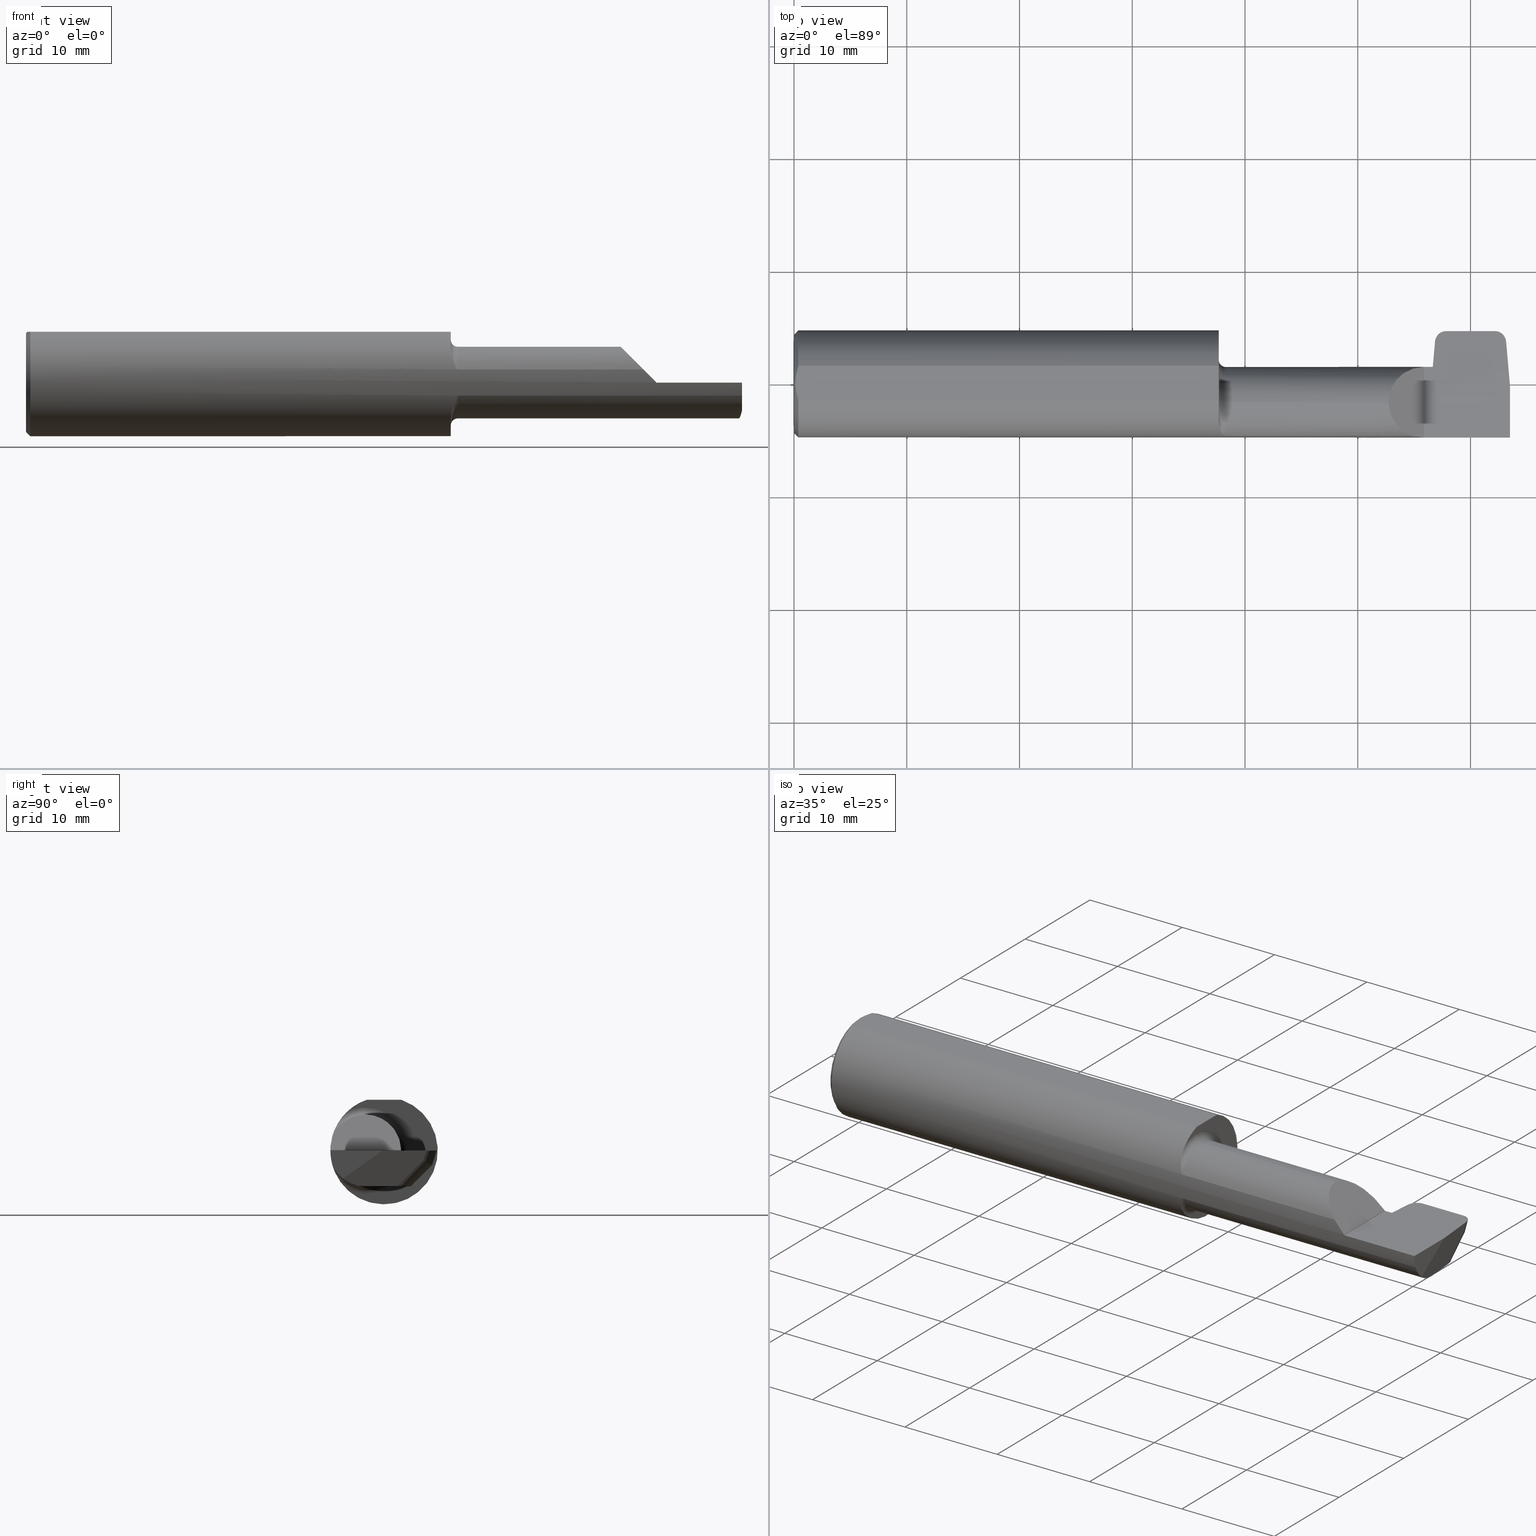
[diagram: canonical four-view strip — front | top / right | iso, engineering-drawing reading convention]
A machine part, canonical four-view strip (front | top / right | iso — engineering-drawing reading convention). The complete STEP part file that produces these views, byte-faithful:
ISO-10303-21;
HEADER;
FILE_DESCRIPTION (( 'STEP AP203' ),
    '1' );
FILE_NAME ('224834-GOR241-15.STEP',
    '2024-07-08T17:51:14',
    ( '' ),
    ( '' ),
    'SwSTEP 2.0',
    'SolidWorks 2024',
    '' );
FILE_SCHEMA (( 'CONFIG_CONTROL_DESIGN' ));
ENDSEC;

DATA;
#1 = AXIS2_PLACEMENT_3D ( 'NONE', #264, #650, #889 ) ;
#2 = VECTOR ( 'NONE', #383, 39.37007874015748854 ) ;
#3 = DIRECTION ( 'NONE',  ( 0.7071067811865507924, 0.000000000000000000, -0.7071067811865443531 ) ) ;
#4 = DIRECTION ( 'NONE',  ( 0.000000000000000000, 0.000000000000000000, 1.000000000000000000 ) ) ;
#5 = CARTESIAN_POINT ( 'NONE',  ( 2.489842622564257368, -0.06535000000000003306, -0.1249999999999999861 ) ) ;
#6 = ORIENTED_EDGE ( 'NONE', *, *, #639, .T. ) ;
#7 = LINE ( 'NONE', #308, #123 ) ;
#8 = DIRECTION ( 'NONE',  ( 1.000000000000000000, -0.000000000000000000, -0.000000000000000000 ) ) ;
#9 = ORIENTED_EDGE ( 'NONE', *, *, #927, .T. ) ;
#10 = LINE ( 'NONE', #221, #512 ) ;
#11 = DIRECTION ( 'NONE',  ( -1.000000000000000000, -0.000000000000000000, -0.000000000000000000 ) ) ;
#12 = ORIENTED_EDGE ( 'NONE', *, *, #79, .T. ) ;
#13 = VECTOR ( 'NONE', #446, 39.37007874015748143 ) ;
#14 = CARTESIAN_POINT ( 'NONE',  ( 2.241330510889295802, 0.1366994779062488674, -0.03365812271429349800 ) ) ;
#15 = VECTOR ( 'NONE', #325, 39.37007874015748143 ) ;
#16 = LOCAL_TIME ( 10, 51, 14.00000000000000000, #968 ) ;
#17 = CARTESIAN_POINT ( 'NONE',  ( 0.000000000000000000, 0.000000000000000000, 0.000000000000000000 ) ) ;
#18 = EDGE_LOOP ( 'NONE', ( #494, #723 ) ) ;
#19 = FACE_OUTER_BOUND ( 'NONE', #35, .T. ) ;
#20 = CARTESIAN_POINT ( 'NONE',  ( 2.076349999999999696, 0.007247797425264607650, 0.1249999999999999306 ) ) ;
#21 = EDGE_LOOP ( 'NONE', ( #285, #76, #100, #861 ) ) ;
#22 = CARTESIAN_POINT ( 'NONE',  ( 2.281747345654483006, 0.1683139580139821345, -0.05027716748297304805 ) ) ;
#23 = EDGE_CURVE ( 'NONE', #829, #955, #579, .T. ) ;
#24 =( BOUNDED_CURVE ( )  B_SPLINE_CURVE ( 3, ( #69, #756, #752, #57 ),
 .UNSPECIFIED., .F., .T. ) 
 B_SPLINE_CURVE_WITH_KNOTS ( ( 4, 4 ),
 ( 3.095858431787237297, 3.123519265815145829 ),
 .UNSPECIFIED. ) 
 CURVE ( )  GEOMETRIC_REPRESENTATION_ITEM ( )  RATIONAL_B_SPLINE_CURVE ( ( 1.000000000000000000, 0.9999362408714059791, 0.9999362408714059791, 1.000000000000000000 ) ) 
 REPRESENTATION_ITEM ( '' )  );
#25 = CARTESIAN_POINT ( 'NONE',  ( 1.483000000000000096, -0.06535000000000003306, 0.000000000000000000 ) ) ;
#26 = FACE_OUTER_BOUND ( 'NONE', #673, .T. ) ;
#27 = VERTEX_POINT ( 'NONE', #499 ) ;
#28 = EDGE_CURVE ( 'NONE', #44, #722, #902, .T. ) ;
#29 = DIRECTION ( 'NONE',  ( 0.000000000000000000, 0.000000000000000000, -1.000000000000000000 ) ) ;
#30 = AXIS2_PLACEMENT_3D ( 'NONE', #31, #334, #606 ) ;
#31 = CARTESIAN_POINT ( 'NONE',  ( 1.507999999999999785, -0.06535000000000003306, 0.000000000000000000 ) ) ;
#32 = AXIS2_PLACEMENT_3D ( 'NONE', #25, #245, #108 ) ;
#33 = EDGE_LOOP ( 'NONE', ( #1004, #259 ) ) ;
#34 = ORIENTED_EDGE ( 'NONE', *, *, #28, .F. ) ;
#35 = EDGE_LOOP ( 'NONE', ( #586, #895, #224, #115, #964 ) ) ;
#36 = CARTESIAN_POINT ( 'NONE',  ( 2.127406436601749107, 0.05885865357521877228, 0.07394356339825008950 ) ) ;
#37 = ORIENTED_EDGE ( 'NONE', *, *, #1000, .T. ) ;
#38 = CALENDAR_DATE ( 2024, 8, 7 ) ;
#39 = EDGE_CURVE ( 'NONE', #732, #845, #315, .T. ) ;
#40 = CARTESIAN_POINT ( 'NONE',  ( 2.443006962205668486, 0.1683139580139820790, -0.05027716748297308968 ) ) ;
#41 = VERTEX_POINT ( 'NONE', #175 ) ;
#42 = VECTOR ( 'NONE', #996, 39.37007874015748143 ) ;
#43 = AXIS2_PLACEMENT_3D ( 'NONE', #899, #684, #667 ) ;
#44 = VERTEX_POINT ( 'NONE', #804 ) ;
#45 = VECTOR ( 'NONE', #502, 39.37007874015748143 ) ;
#46 = ADVANCED_FACE ( 'NONE', ( #26 ), #415, .T. ) ;
#47 = LINE ( 'NONE', #596, #939 ) ;
#48 = CARTESIAN_POINT ( 'NONE',  ( 0.01499999999999970281, 0.000000000000000000, 0.000000000000000000 ) ) ;
#49 = CARTESIAN_POINT ( 'NONE',  ( 2.200000000000000178, -0.1873451360457484560, 0.001349999999999087824 ) ) ;
#50 = ORIENTED_EDGE ( 'NONE', *, *, #725, .T. ) ;
#51 = LINE ( 'NONE', #831, #45 ) ;
#52 = DIRECTION ( 'NONE',  ( 1.000000000000000000, -0.000000000000000000, -0.000000000000000000 ) ) ;
#53 = CARTESIAN_POINT ( 'NONE',  ( 2.500000000000000000, 0.2000000000000000111, -3.979970649922726459E-17 ) ) ;
#54 = VERTEX_POINT ( 'NONE', #251 ) ;
#55 =( BOUNDED_CURVE ( )  B_SPLINE_CURVE ( 3, ( #180, #36, #20, #113 ),
 .UNSPECIFIED., .F., .T. ) 
 B_SPLINE_CURVE_WITH_KNOTS ( ( 4, 4 ),
 ( 4.723189190347703459, 6.283185307179586232 ),
 .UNSPECIFIED. ) 
 CURVE ( )  GEOMETRIC_REPRESENTATION_ITEM ( )  RATIONAL_B_SPLINE_CURVE ( ( 1.000000000000000000, 0.8072766023246975564, 0.8072766023246975564, 1.000000000000000000 ) ) 
 REPRESENTATION_ITEM ( '' )  );
#56 = CARTESIAN_POINT ( 'NONE',  ( 2.259893763376607634, 0.1673953732353462565, -0.05119575226160869713 ) ) ;
#57 = CARTESIAN_POINT ( 'NONE',  ( 2.444115036006996977, 0.1682901254326542861, -0.05030100006430086867 ) ) ;
#58 = DIRECTION ( 'NONE',  ( -0.02528153024484445024, 0.7068807693764398437, 0.7068807693764569411 ) ) ;
#59 = ORIENTED_EDGE ( 'NONE', *, *, #416, .T. ) ;
#60 = VECTOR ( 'NONE', #328, 39.37007874015748143 ) ;
#61 = AXIS2_PLACEMENT_3D ( 'NONE', #701, #84, #29 ) ;
#62 = DIRECTION ( 'NONE',  ( 0.000000000000000000, 0.000000000000000000, -1.000000000000000000 ) ) ;
#63 = DIRECTION ( 'NONE',  ( -1.000000000000000000, -0.000000000000000000, -0.000000000000000000 ) ) ;
#64 = CARTESIAN_POINT ( 'NONE',  ( 1.856500000000000039, -0.1816805279265493456, 0.04574066322573715898 ) ) ;
#65 = ORIENTED_EDGE ( 'NONE', *, *, #920, .F. ) ;
#66 = ADVANCED_FACE ( 'NONE', ( #565 ), #735, .T. ) ;
#67 = SHAPE_DEFINITION_REPRESENTATION ( #483, #270 ) ;
#68 = DIRECTION ( 'NONE',  ( 0.000000000000000000, -1.000000000000000000, 0.000000000000000000 ) ) ;
#69 = CARTESIAN_POINT ( 'NONE',  ( 2.443006962205668486, 0.1683139580139820790, -0.05027716748297308968 ) ) ;
#70 = CARTESIAN_POINT ( 'NONE',  ( 1.490157939458078840, -0.1674139084628468166, -0.08459198811596603529 ) ) ;
#71 = ORIENTED_EDGE ( 'NONE', *, *, #715, .T. ) ;
#72 = ADVANCED_FACE ( 'NONE', ( #486 ), #158, .F. ) ;
#73 = CARTESIAN_POINT ( 'NONE',  ( 1.483000000000000096, 0.05964999999999988367, -3.979970649922724610E-17 ) ) ;
#74 = DIRECTION ( 'NONE',  ( 1.000000000000000000, 0.000000000000000000, 0.000000000000000000 ) ) ;
#75 = CARTESIAN_POINT ( 'NONE',  ( 1.486681773380124749, -0.1584047100801144747, -0.1004548108586794247 ) ) ;
#76 = ORIENTED_EDGE ( 'NONE', *, *, #887, .F. ) ;
#77 = VECTOR ( 'NONE', #236, 39.37007874015748854 ) ;
#78 = CIRCLE ( 'NONE', #825, 0.1723500000000004195 ) ;
#79 = EDGE_CURVE ( 'NONE', #731, #41, #348, .T. ) ;
#80 = DIRECTION ( 'NONE',  ( 0.02528153024484488046, 0.7068807693764396216, 0.7068807693764568301 ) ) ;
#81 = DIRECTION ( 'NONE',  ( 1.000000000000000000, -0.000000000000000000, -0.000000000000000000 ) ) ;
#82 = CARTESIAN_POINT ( 'NONE',  ( 1.483000000000000096, -0.06535000000000003306, 0.000000000000000000 ) ) ;
#83 = VERTEX_POINT ( 'NONE', #448 ) ;
#84 = DIRECTION ( 'NONE',  ( 1.000000000000000000, 0.000000000000000000, 0.000000000000000000 ) ) ;
#85 = DIRECTION ( 'NONE',  ( 0.9887692138764512251, -0.08650609705762356272, 0.1218693434051477675 ) ) ;
#86 = CARTESIAN_POINT ( 'NONE',  ( 0.01499999999999283677, -0.06039039658755173540, 0.1773499999999999799 ) ) ;
#87 = EDGE_LOOP ( 'NONE', ( #191, #37, #12, #510, #877, #102 ) ) ;
#88 = CARTESIAN_POINT ( 'NONE',  ( 2.276979723352248186, 0.1846500000000000363, -3.979970649922726459E-17 ) ) ;
#89 = CARTESIAN_POINT ( 'NONE',  ( 2.244504986094757459, 0.05593696578449949136, -0.03024023694995829278 ) ) ;
#90 = ORIENTED_EDGE ( 'NONE', *, *, #28, .T. ) ;
#91 = VECTOR ( 'NONE', #550, 39.37007874015748854 ) ;
#92 = AXIS2_PLACEMENT_3D ( 'NONE', #540, #8, #237 ) ;
#93 = DIRECTION ( 'NONE',  ( 0.000000000000000000, 0.000000000000000000, -1.000000000000000000 ) ) ;
#94 = AXIS2_PLACEMENT_3D ( 'NONE', #414, #336, #572 ) ;
#95 = CARTESIAN_POINT ( 'NONE',  ( 2.500000000000000000, 0.09359112549695701444, -0.1249999999999999861 ) ) ;
#96 = ORIENTED_EDGE ( 'NONE', *, *, #432, .T. ) ;
#97 = EDGE_CURVE ( 'NONE', #722, #916, #142, .T. ) ;
#98 = EDGE_CURVE ( 'NONE', #807, #141, #986, .T. ) ;
#99 = LINE ( 'NONE', #492, #919 ) ;
#100 = ORIENTED_EDGE ( 'NONE', *, *, #505, .F. ) ;
#101 = EDGE_CURVE ( 'NONE', #130, #289, #373, .T. ) ;
#102 = ORIENTED_EDGE ( 'NONE', *, *, #511, .T. ) ;
#103 = LINE ( 'NONE', #73, #577 ) ;
#104 = CARTESIAN_POINT ( 'NONE',  ( 2.483423796970855690, 0.1366994779062487564, -0.03365812271429361596 ) ) ;
#105 = EDGE_LOOP ( 'NONE', ( #740, #993, #581, #569, #399, #422, #949, #774, #678, #341 ) ) ;
#106 = VERTEX_POINT ( 'NONE', #914 ) ;
#107 = AXIS2_PLACEMENT_3D ( 'NONE', #484, #556, #870 ) ;
#108 = DIRECTION ( 'NONE',  ( 0.000000000000000000, 0.000000000000000000, 1.000000000000000000 ) ) ;
#109 = ORIENTED_EDGE ( 'NONE', *, *, #39, .T. ) ;
#110 = CC_DESIGN_PERSON_AND_ORGANIZATION_ASSIGNMENT ( #549, #324, ( #865 ) ) ;
#111 = AXIS2_PLACEMENT_3D ( 'NONE', #522, #347, #835 ) ;
#112 = ORIENTED_EDGE ( 'NONE', *, *, #416, .F. ) ;
#113 = CARTESIAN_POINT ( 'NONE',  ( 2.076349999999999252, -0.06535000000000003306, 0.1249999999999999306 ) ) ;
#114 = DIRECTION ( 'NONE',  ( 0.000000000000000000, 0.000000000000000000, -1.000000000000000000 ) ) ;
#115 = ORIENTED_EDGE ( 'NONE', *, *, #168, .F. ) ;
#116 = EDGE_CURVE ( 'NONE', #845, #884, #597, .T. ) ;
#117 = PERSON_AND_ORGANIZATION ( #454, #594 ) ;
#118 = CARTESIAN_POINT ( 'NONE',  ( 2.500000000000000000, 0.06039039658753697637, 0.1773499999999999799 ) ) ;
#119 = EDGE_LOOP ( 'NONE', ( #229, #656, #882, #603 ) ) ;
#120 = EDGE_CURVE ( 'NONE', #178, #916, #444, .T. ) ;
#121 = CARTESIAN_POINT ( 'NONE',  ( 2.510000000000000231, -0.07805443725151821333, -0.2966455627484793633 ) ) ;
#122 = AXIS2_PLACEMENT_3D ( 'NONE', #528, #982, #976 ) ;
#123 = VECTOR ( 'NONE', #3, 39.37007874015748143 ) ;
#124 = PLANE ( 'NONE',  #43 ) ;
#125 = ORIENTED_EDGE ( 'NONE', *, *, #580, .T. ) ;
#126 = APPROVAL_PERSON_ORGANIZATION ( #192, #433, #657 ) ;
#127 = DIRECTION ( 'NONE',  ( 0.000000000000000000, -0.3090169943749363490, -0.9510565162951570839 ) ) ;
#128 = DIRECTION ( 'NONE',  ( -0.7071067811865481278, 0.000000000000000000, -0.7071067811865470176 ) ) ;
#129 = CARTESIAN_POINT ( 'NONE',  ( 1.497714394919972714, -0.1775724809961186645, 0.05988543762226162387 ) ) ;
#130 = VERTEX_POINT ( 'NONE', #443 ) ;
#131 = COORDINATED_UNIVERSAL_TIME_OFFSET ( 8, 0, .BEHIND. ) ;
#132 = CARTESIAN_POINT ( 'NONE',  ( 2.280639271853154515, 0.1682901254326543694, -0.05030100006430077847 ) ) ;
#133 = FACE_OUTER_BOUND ( 'NONE', #119, .T. ) ;
#134 = DIRECTION ( 'NONE',  ( 0.1223279114424238589, 0.000000000000000000, 0.9924897390311572254 ) ) ;
#135 = ORIENTED_EDGE ( 'NONE', *, *, #643, .T. ) ;
#136 = APPROVAL_STATUS ( 'not_yet_approved' ) ;
#137 = CARTESIAN_POINT ( 'NONE',  ( 1.507999999999999785, -0.1816805279265493456, -0.04574066322573715898 ) ) ;
#138 = DIRECTION ( 'NONE',  ( -1.000000000000000000, 1.273735306860104948E-16, -8.009888927950517499E-33 ) ) ;
#139 = EDGE_CURVE ( 'NONE', #854, #955, #648, .T. ) ;
#140 = CARTESIAN_POINT ( 'NONE',  ( 1.504038611304518547, -0.1811041330649479919, 0.04797886786269590226 ) ) ;
#141 = VERTEX_POINT ( 'NONE', #439 ) ;
#142 = CIRCLE ( 'NONE', #463, 0.1499999999999999389 ) ;
#143 = VECTOR ( 'NONE', #404, 39.37007874015748143 ) ;
#144 = CARTESIAN_POINT ( 'NONE',  ( 2.230428753807164988, 0.05966344184561211267, 0.0001094750472970610884 ) ) ;
#145 = CARTESIAN_POINT ( 'NONE',  ( 2.155609336774261919, -0.1816805279265493178, 0.04574066322573720061 ) ) ;
#146 = ORIENTED_EDGE ( 'NONE', *, *, #615, .F. ) ;
#147 = DATE_AND_TIME ( #622, #795 ) ;
#148 = EDGE_CURVE ( 'NONE', #187, #106, #898, .T. ) ;
#149 = CARTESIAN_POINT ( 'NONE',  ( 0.01499999999999970281, 2.294375778202566330E-17, 0.1873499999999999888 ) ) ;
#150 = DIRECTION ( 'NONE',  ( -1.000000000000000000, -0.000000000000000000, -0.000000000000000000 ) ) ;
#151 = CARTESIAN_POINT ( 'NONE',  ( 1.506817590302755860, -0.1816805279265502338, -0.04574066322574427135 ) ) ;
#152 = ORIENTED_EDGE ( 'NONE', *, *, #139, .T. ) ;
#153 = ADVANCED_FACE ( 'NONE', ( #832 ), #345, .F. ) ;
#154 =( LENGTH_UNIT ( ) NAMED_UNIT ( * ) SI_UNIT ( $, .METRE. ) );
#155 = CARTESIAN_POINT ( 'NONE',  ( 2.200000000000000178, -0.1873499999999999888, -3.979970649922726459E-17 ) ) ;
#156 = FACE_OUTER_BOUND ( 'NONE', #18, .T. ) ;
#157 = ORIENTED_EDGE ( 'NONE', *, *, #658, .F. ) ;
#158 = TOROIDAL_SURFACE ( 'NONE', #30, 0.1499999999999999389, 0.02500000000000000139 ) ;
#159 = APPROVAL_PERSON_ORGANIZATION ( #487, #757, #330 ) ;
#160 = DIRECTION ( 'NONE',  ( 0.000000000000000000, 0.7071067811865560104, -0.7071067811865391350 ) ) ;
#161 = DIRECTION ( 'NONE',  ( 1.000000000000000000, -8.537024980200214395E-15, 0.000000000000000000 ) ) ;
#162 = DIRECTION ( 'NONE',  ( 0.000000000000000000, -0.1218693434051474900, -0.9925461516413219831 ) ) ;
#163 = ORIENTED_EDGE ( 'NONE', *, *, #98, .F. ) ;
#164 = CARTESIAN_POINT ( 'NONE',  ( 2.436992172061466899, 0.1477045518773638932, -0.1137063974606040834 ) ) ;
#165 = CARTESIAN_POINT ( 'NONE',  ( 2.500000000000000000, -0.1431654907182394187, -0.09782509598400397632 ) ) ;
#166 = EDGE_LOOP ( 'NONE', ( #157, #256, #712, #704 ) ) ;
#167 = CARTESIAN_POINT ( 'NONE',  ( 2.500000000000000000, -0.001792473208543269182, 0.002525227012044893408 ) ) ;
#168 = EDGE_CURVE ( 'NONE', #829, #54, #24, .T. ) ;
#169 = DIRECTION ( 'NONE',  ( 0.000000000000000000, 0.000000000000000000, -1.000000000000000000 ) ) ;
#170 = ORIENTED_EDGE ( 'NONE', *, *, #526, .T. ) ;
#171 = ADVANCED_FACE ( 'NONE', ( #133 ), #277, .F. ) ;
#172 = CARTESIAN_POINT ( 'NONE',  ( 0.01499999999999970281, 0.000000000000000000, -0.1873499999999999888 ) ) ;
#173 = CIRCLE ( 'NONE', #744, 0.1873499999999999888 ) ;
#174 = CARTESIAN_POINT ( 'NONE',  ( 2.244597345316346804, 0.04535760062054455810, -0.1249999999999999861 ) ) ;
#175 = CARTESIAN_POINT ( 'NONE',  ( 2.486615488638019844, 0.1476356649143464872, 0.000000000000000000 ) ) ;
#176 =( NAMED_UNIT ( * ) SI_UNIT ( $, .STERADIAN. ) SOLID_ANGLE_UNIT ( ) );
#177 = DIRECTION ( 'NONE',  ( -0.08982109674372384944, 0.3077679217474510454, 0.9472122660328092802 ) ) ;
#178 = VERTEX_POINT ( 'NONE', #272 ) ;
#179 = ORIENTED_EDGE ( 'NONE', *, *, #896, .F. ) ;
#180 = CARTESIAN_POINT ( 'NONE',  ( 2.200000000000000178, 0.05964270978741119389, 0.001349999999999188004 ) ) ;
#181 = ORIENTED_EDGE ( 'NONE', *, *, #343, .T. ) ;
#182 = ORIENTED_EDGE ( 'NONE', *, *, #376, .T. ) ;
#183 = AXIS2_PLACEMENT_3D ( 'NONE', #121, #287, #200 ) ;
#184 = DIRECTION ( 'NONE',  ( 0.000000000000000000, 0.000000000000000000, -1.000000000000000000 ) ) ;
#185 = CARTESIAN_POINT ( 'NONE',  ( 2.220128570000000412, 0.1683139580139821345, -0.05027716748297302723 ) ) ;
#186 = VECTOR ( 'NONE', #507, 39.37007874015748143 ) ;
#187 = VERTEX_POINT ( 'NONE', #508 ) ;
#188 = PERSON_AND_ORGANIZATION_ROLE ( 'creator' ) ;
#189 = CARTESIAN_POINT ( 'NONE',  ( 2.247139226226500419, 0.07441143237099386021, -0.1249999999999999445 ) ) ;
#190 = DIRECTION ( 'NONE',  ( 0.000000000000000000, 0.000000000000000000, 1.000000000000000000 ) ) ;
#191 = ORIENTED_EDGE ( 'NONE', *, *, #981, .F. ) ;
#192 = PERSON_AND_ORGANIZATION ( #454, #594 ) ;
#193 = CARTESIAN_POINT ( 'NONE',  ( 1.483000000000000096, 0.1000000000000000056, 0.1773499999999999799 ) ) ;
#194 = LINE ( 'NONE', #523, #593 ) ;
#195 = ADVANCED_FACE ( 'NONE', ( #292 ), #683, .F. ) ;
#196 = FACE_OUTER_BOUND ( 'NONE', #403, .T. ) ;
#197 = ORIENTED_EDGE ( 'NONE', *, *, #120, .T. ) ;
#198 = EDGE_CURVE ( 'NONE', #54, #731, #958, .T. ) ;
#199 = DIRECTION ( 'NONE',  ( 0.000000000000000000, 0.000000000000000000, 1.000000000000000000 ) ) ;
#200 = DIRECTION ( 'NONE',  ( 0.000000000000000000, -0.7071067811865389130, -0.7071067811865561215 ) ) ;
#201 = VECTOR ( 'NONE', #138, 39.37007874015748143 ) ;
#202 =( GEOMETRIC_REPRESENTATION_CONTEXT ( 3 ) GLOBAL_UNCERTAINTY_ASSIGNED_CONTEXT ( ( #412 ) ) GLOBAL_UNIT_ASSIGNED_CONTEXT ( ( #387, #535, #176 ) ) REPRESENTATION_CONTEXT ( 'NONE', 'WORKASPACE' ) );
#203 = CARTESIAN_POINT ( 'NONE',  ( 2.170144162329409543, -0.1853398774911412805, 0.03120583767058958749 ) ) ;
#204 = ORIENTED_EDGE ( 'NONE', *, *, #869, .F. ) ;
#205 = CARTESIAN_POINT ( 'NONE',  ( 2.281747345654483006, 0.1683139580139821345, -0.05027716748297304805 ) ) ;
#206 = CARTESIAN_POINT ( 'NONE',  ( 2.483377153930075742, 0.1846499999999999808, 0.000000000000000000 ) ) ;
#207 = VERTEX_POINT ( 'NONE', #747 ) ;
#208 = APPROVAL ( #136, 'UNSPECIFIED' ) ;
#209 = DIRECTION ( 'NONE',  ( 0.000000000000000000, 0.000000000000000000, -1.000000000000000000 ) ) ;
#210 = CARTESIAN_POINT ( 'NONE',  ( 2.023999999999999577, 0.1000000000000000056, 0.1773499999999999799 ) ) ;
#211 = FACE_OUTER_BOUND ( 'NONE', #87, .T. ) ;
#212 = ORIENTED_EDGE ( 'NONE', *, *, #604, .F. ) ;
#213 = CARTESIAN_POINT ( 'NONE',  ( 2.489919779257633081, -0.06623190504079595753, -0.1249999999999999861 ) ) ;
#214 = CARTESIAN_POINT ( 'NONE',  ( 2.281377025912419754, 0.1683139580139821623, -0.05027716748297293009 ) ) ;
#215 = CARTESIAN_POINT ( 'NONE',  ( 1.507999999999999785, -0.06535000000000003306, 0.000000000000000000 ) ) ;
#216 = CIRCLE ( 'NONE', #262, 0.1249999999999999306 ) ;
#217 = ORIENTED_EDGE ( 'NONE', *, *, #23, .F. ) ;
#218 = EDGE_CURVE ( 'NONE', #54, #294, #194, .T. ) ;
#219 = VECTOR ( 'NONE', #978, 39.37007874015748854 ) ;
#220 = SECURITY_CLASSIFICATION ( '', '', #737 ) ;
#221 = CARTESIAN_POINT ( 'NONE',  ( 1.483000000000000096, -0.06535000000000000531, -0.1249999999999999306 ) ) ;
#222 = ADVANCED_FACE ( 'NONE', ( #370 ), #380, .T. ) ;
#223 = DIRECTION ( 'NONE',  ( -1.000000000000000000, 0.000000000000000000, -0.000000000000000000 ) ) ;
#224 = ORIENTED_EDGE ( 'NONE', *, *, #198, .F. ) ;
#225 =( BOUNDED_CURVE ( )  B_SPLINE_CURVE ( 3, ( #165, #848, #620, #5 ),
 .UNSPECIFIED., .F., .T. ) 
 B_SPLINE_CURVE_WITH_KNOTS ( ( 4, 4 ),
 ( 4.993931103440154118, 5.665894734938331290 ),
 .UNSPECIFIED. ) 
 CURVE ( )  GEOMETRIC_REPRESENTATION_ITEM ( )  RATIONAL_B_SPLINE_CURVE ( ( 1.000000000000000000, 0.9627247091652257893, 0.9627247091652257893, 1.000000000000000000 ) ) 
 REPRESENTATION_ITEM ( '' )  );
#226 = CARTESIAN_POINT ( 'NONE',  ( 2.484882197498409884, 0.1774768864330362461, 0.007119285812494857354 ) ) ;
#227 = LINE ( 'NONE', #167, #91 ) ;
#228 = PLANE ( 'NONE',  #530 ) ;
#229 = ORIENTED_EDGE ( 'NONE', *, *, #957, .F. ) ;
#230 = DIRECTION ( 'NONE',  ( 0.02528153024484443637, -0.7068807693764396216, -0.7068807693764568301 ) ) ;
#231 = DIRECTION ( 'NONE',  ( -1.000000000000000000, -0.000000000000000000, -0.000000000000000000 ) ) ;
#232 = ORIENTED_EDGE ( 'NONE', *, *, #400, .F. ) ;
#233 = AXIS2_PLACEMENT_3D ( 'NONE', #893, #601, #281 ) ;
#234 = AXIS2_PLACEMENT_3D ( 'NONE', #613, #223, #537 ) ;
#235 = CC_DESIGN_APPROVAL ( #433, ( #266 ) ) ;
#236 = DIRECTION ( 'NONE',  ( 0.08982109674372386332, -0.3077679217474510454, -0.9472122660328092802 ) ) ;
#237 = DIRECTION ( 'NONE',  ( 0.000000000000000000, 0.000000000000000000, 1.000000000000000000 ) ) ;
#238 = ORIENTED_EDGE ( 'NONE', *, *, #716, .T. ) ;
#239 = EDGE_CURVE ( 'NONE', #381, #393, #300, .T. ) ;
#240 = EDGE_CURVE ( 'NONE', #700, #984, #227, .T. ) ;
#241 = CARTESIAN_POINT ( 'NONE',  ( 2.200000000000000178, 0.000000000000000000, 0.000000000000000000 ) ) ;
#242 = CARTESIAN_POINT ( 'NONE',  ( 2.244504986094757459, 0.04430192988713683305, -0.1249999999999999861 ) ) ;
#243 = ORIENTED_EDGE ( 'NONE', *, *, #198, .T. ) ;
#244 = DIRECTION ( 'NONE',  ( -1.000000000000000000, 0.000000000000000000, 0.000000000000000000 ) ) ;
#245 = DIRECTION ( 'NONE',  ( -1.000000000000000000, -0.000000000000000000, -0.000000000000000000 ) ) ;
#246 = CARTESIAN_POINT ( 'NONE',  ( 2.500000000000000000, 0.000000000000000000, 0.000000000000000000 ) ) ;
#247 = ADVANCED_FACE ( 'NONE', ( #384 ), #539, .F. ) ;
#248 = APPLICATION_PROTOCOL_DEFINITION ( 'international standard', 'config_control_design', 1994, #705 ) ;
#249 = AXIS2_PLACEMENT_3D ( 'NONE', #210, #128, #365 ) ;
#250 = DIRECTION ( 'NONE',  ( 1.000000000000000000, 0.000000000000000000, 0.000000000000000000 ) ) ;
#251 = CARTESIAN_POINT ( 'NONE',  ( 2.444115036006996977, 0.1682901254326542861, -0.05030100006430086867 ) ) ;
#252 = EDGE_CURVE ( 'NONE', #187, #829, #933, .T. ) ;
#253 = VERTEX_POINT ( 'NONE', #155 ) ;
#254 = CC_DESIGN_PERSON_AND_ORGANIZATION_ASSIGNMENT ( #886, #188, ( #266 ) ) ;
#255 = CARTESIAN_POINT ( 'NONE',  ( 0.01499999999999970281, 0.06039039658753697637, 0.1773499999999999799 ) ) ;
#256 = ORIENTED_EDGE ( 'NONE', *, *, #957, .T. ) ;
#257 = ORIENTED_EDGE ( 'NONE', *, *, #873, .F. ) ;
#258 = DIRECTION ( 'NONE',  ( 1.000000000000000000, 0.000000000000000000, 0.000000000000000000 ) ) ;
#259 = ORIENTED_EDGE ( 'NONE', *, *, #595, .T. ) ;
#260 = EDGE_LOOP ( 'NONE', ( #559, #591, #491, #182, #406, #524, #305, #979, #319, #390, #50, #274, #635, #868 ) ) ;
#261 = DATE_AND_TIME ( #38, #16 ) ;
#262 = AXIS2_PLACEMENT_3D ( 'NONE', #215, #753, #688 ) ;
#263 = VECTOR ( 'NONE', #598, 39.37007874015748143 ) ;
#264 = CARTESIAN_POINT ( 'NONE',  ( 2.244504986094757459, 0.05593696578449949136, -0.03024023694995829278 ) ) ;
#265 = DIRECTION ( 'NONE',  ( -1.000000000000000000, -0.000000000000000000, -0.000000000000000000 ) ) ;
#266 = PRODUCT_DEFINITION_FORMATION_WITH_SPECIFIED_SOURCE ( 'ANY', '', #865, .NOT_KNOWN. ) ;
#267 = ORIENTED_EDGE ( 'NONE', *, *, #98, .T. ) ;
#268 = CALENDAR_DATE ( 2024, 8, 7 ) ;
#269 = EDGE_CURVE ( 'NONE', #621, #141, #475, .T. ) ;
#270 = ADVANCED_BREP_SHAPE_REPRESENTATION ( '224834-GOR241-15', ( #713, #810 ), #202 ) ;
#271 = CARTESIAN_POINT ( 'NONE',  ( 1.507999999999999785, -0.06535000000000000531, 0.1499999999999999389 ) ) ;
#272 = CARTESIAN_POINT ( 'NONE',  ( 1.507999999999999785, -0.06535000000000000531, -0.1249999999999999306 ) ) ;
#273 = CYLINDRICAL_SURFACE ( 'NONE', #661, 0.04000000000000000083 ) ;
#274 = ORIENTED_EDGE ( 'NONE', *, *, #888, .T. ) ;
#275 = EDGE_CURVE ( 'NONE', #719, #779, #917, .T. ) ;
#276 = DIRECTION ( 'NONE',  ( 0.000000000000000000, 1.000000000000000000, -1.224646799147353207E-16 ) ) ;
#277 = PLANE ( 'NONE',  #249 ) ;
#278 = CARTESIAN_POINT ( 'NONE',  ( 1.483000000000000096, -0.1358364408402822632, -0.1293653927267005843 ) ) ;
#279 = ORIENTED_EDGE ( 'NONE', *, *, #218, .F. ) ;
#280 = FACE_OUTER_BOUND ( 'NONE', #754, .T. ) ;
#281 = DIRECTION ( 'NONE',  ( 0.000000000000000000, 0.000000000000000000, -1.000000000000000000 ) ) ;
#282 = AXIS2_PLACEMENT_3D ( 'NONE', #863, #702, #456 ) ;
#283 = AXIS2_PLACEMENT_3D ( 'NONE', #995, #975, #985 ) ;
#284 = LINE ( 'NONE', #64, #263 ) ;
#285 = ORIENTED_EDGE ( 'NONE', *, *, #120, .F. ) ;
#286 = DIRECTION ( 'NONE',  ( 0.000000000000000000, -0.1218693434051477398, -0.9925461516413219831 ) ) ;
#287 = DIRECTION ( 'NONE',  ( 4.163168686520012520E-17, -0.7071067811865561215, 0.7071067811865389130 ) ) ;
#288 = CARTESIAN_POINT ( 'NONE',  ( 1.486710439827054309, -0.1584902558649208815, 0.1003133187725621656 ) ) ;
#289 = VERTEX_POINT ( 'NONE', #777 ) ;
#290 = EDGE_CURVE ( 'NONE', #106, #768, #468, .T. ) ;
#291 = CARTESIAN_POINT ( 'NONE',  ( 2.226944011631511344, 0.05840614090344291992, -0.02033691646133876235 ) ) ;
#292 = FACE_OUTER_BOUND ( 'NONE', #504, .T. ) ;
#293 = DIRECTION ( 'NONE',  ( -0.9887692138764513361, -0.08650609705762295210, 0.1218693434051477814 ) ) ;
#294 = VERTEX_POINT ( 'NONE', #461 ) ;
#295 =( BOUNDED_CURVE ( )  B_SPLINE_CURVE ( 3, ( #751, #291, #514, #426 ),
 .UNSPECIFIED., .F., .T. ) 
 B_SPLINE_CURVE_WITH_KNOTS ( ( 4, 4 ),
 ( 1.326450231515708511, 1.570796326794911879 ),
 .UNSPECIFIED. ) 
 CURVE ( )  GEOMETRIC_REPRESENTATION_ITEM ( )  RATIONAL_B_SPLINE_CURVE ( ( 1.000000000000000000, 0.9950307677608813961, 0.9950307677608813961, 1.000000000000000000 ) ) 
 REPRESENTATION_ITEM ( '' )  );
#296 = EDGE_CURVE ( 'NONE', #337, #459, #866, .T. ) ;
#297 = CARTESIAN_POINT ( 'NONE',  ( 2.244504986094757459, -0.06535000000000003306, 0.000000000000000000 ) ) ;
#298 = PLANE ( 'NONE',  #760 ) ;
#299 = PLANE ( 'NONE',  #234 ) ;
#300 = CIRCLE ( 'NONE', #479, 0.1873499999999999888 ) ;
#301 = ORIENTED_EDGE ( 'NONE', *, *, #290, .T. ) ;
#302 = TOROIDAL_SURFACE ( 'NONE', #663, 0.1499999999999999389, 0.02500000000000000139 ) ;
#303 = CARTESIAN_POINT ( 'NONE',  ( 2.447774584507903306, 0.1846500000000000086, -3.979970649922726459E-17 ) ) ;
#304 = CARTESIAN_POINT ( 'NONE',  ( 1.500471878265903003, -0.1794901087543955276, -0.05373940346778397631 ) ) ;
#305 = ORIENTED_EDGE ( 'NONE', *, *, #424, .T. ) ;
#306 = COORDINATED_UNIVERSAL_TIME_OFFSET ( 8, 0, .BEHIND. ) ;
#307 = EDGE_CURVE ( 'NONE', #41, #187, #363, .T. ) ;
#308 = CARTESIAN_POINT ( 'NONE',  ( 0.01499999999999970281, 0.000000000000000000, -0.1873499999999999888 ) ) ;
#309 = CARTESIAN_POINT ( 'NONE',  ( 2.486615488638019844, 0.1476356649143464872, 0.000000000000000000 ) ) ;
#310 = CARTESIAN_POINT ( 'NONE',  ( 1.507999999999999785, -0.06535000000000003306, 0.1249999999999999306 ) ) ;
#311 = ORIENTED_EDGE ( 'NONE', *, *, #275, .T. ) ;
#312 = DIRECTION ( 'NONE',  ( -1.000000000000000000, -0.000000000000000000, -0.000000000000000000 ) ) ;
#313 = CARTESIAN_POINT ( 'NONE',  ( 2.244504986094757459, -0.06535000000000003306, 0.000000000000000000 ) ) ;
#314 = ORIENTED_EDGE ( 'NONE', *, *, #896, .T. ) ;
#315 = CIRCLE ( 'NONE', #525, 0.1873499999999999888 ) ;
#316 = CIRCLE ( 'NONE', #111, 0.1723500000000004195 ) ;
#317 = CARTESIAN_POINT ( 'NONE',  ( 1.483000000000000096, 0.000000000000000000, 0.000000000000000000 ) ) ;
#318 = CARTESIAN_POINT ( 'NONE',  ( 1.501477950225052815, -0.1800855208038183997, -0.05170170159513978042 ) ) ;
#319 = ORIENTED_EDGE ( 'NONE', *, *, #801, .T. ) ;
#320 = CYLINDRICAL_SURFACE ( 'NONE', #107, 0.04000000000000000083 ) ;
#321 = ADVANCED_FACE ( 'NONE', ( #693 ), #857, .F. ) ;
#322 = CARTESIAN_POINT ( 'NONE',  ( 2.500000000000000000, -0.005350000000000019670, 0.000000000000000000 ) ) ;
#323 = VERTEX_POINT ( 'NONE', #553 ) ;
#324 = PERSON_AND_ORGANIZATION_ROLE ( 'design_owner' ) ;
#325 = DIRECTION ( 'NONE',  ( 0.7071067811865507924, 8.659560562354895880E-17, 0.7071067811865443531 ) ) ;
#326 = ADVANCED_FACE ( 'NONE', ( #388 ), #298, .F. ) ;
#327 = FACE_OUTER_BOUND ( 'NONE', #945, .T. ) ;
#328 = DIRECTION ( 'NONE',  ( -1.000000000000000000, 2.170164544242713367E-16, 2.758925506135132155E-16 ) ) ;
#329 = ORIENTED_EDGE ( 'NONE', *, *, #615, .T. ) ;
#330 = APPROVAL_ROLE ( '' ) ;
#331 = LINE ( 'NONE', #377, #680 ) ;
#332 = VECTOR ( 'NONE', #910, 39.37007874015748854 ) ;
#333 = LINE ( 'NONE', #405, #761 ) ;
#334 = DIRECTION ( 'NONE',  ( 1.000000000000000000, 0.000000000000000000, 0.000000000000000000 ) ) ;
#335 = ORIENTED_EDGE ( 'NONE', *, *, #696, .F. ) ;
#336 = DIRECTION ( 'NONE',  ( -1.000000000000000000, -0.000000000000000000, -0.000000000000000000 ) ) ;
#337 = VERTEX_POINT ( 'NONE', #14 ) ;
#338 = ORIENTED_EDGE ( 'NONE', *, *, #977, .F. ) ;
#339 = CARTESIAN_POINT ( 'NONE',  ( 1.483000000000000096, -0.06039039658755174234, 0.1773499999999999799 ) ) ;
#340 = CARTESIAN_POINT ( 'NONE',  ( 1.483000000000000096, -0.06535000000000003306, 0.000000000000000000 ) ) ;
#341 = ORIENTED_EDGE ( 'NONE', *, *, #923, .F. ) ;
#342 = EDGE_CURVE ( 'NONE', #289, #178, #10, .T. ) ;
#343 = EDGE_CURVE ( 'NONE', #768, #337, #627, .T. ) ;
#344 = PERSON_AND_ORGANIZATION ( #454, #594 ) ;
#345 = TOROIDAL_SURFACE ( 'NONE', #122, 0.1499999999999999389, 0.02500000000000000139 ) ;
#346 = CIRCLE ( 'NONE', #92, 0.1249999999999999584 ) ;
#347 = DIRECTION ( 'NONE',  ( -1.000000000000000000, -0.000000000000000000, -0.000000000000000000 ) ) ;
#348 = LINE ( 'NONE', #354, #423 ) ;
#349 = CIRCLE ( 'NONE', #61, 0.1873499999999999888 ) ;
#350 = LINE ( 'NONE', #828, #918 ) ;
#351 = ADVANCED_FACE ( 'NONE', ( #922 ), #633, .T. ) ;
#352 = EDGE_LOOP ( 'NONE', ( #243, #695, #212, #279 ) ) ;
#353 = CARTESIAN_POINT ( 'NONE',  ( 2.200000000000000178, 0.05964270978741119389, 0.001349999999999188004 ) ) ;
#354 = CARTESIAN_POINT ( 'NONE',  ( 2.487612588519982015, 0.1510521825206900537, 0.01051495999151338609 ) ) ;
#355 = CARTESIAN_POINT ( 'NONE',  ( 1.503346106735897081, -0.1808597239496786413, 0.04889540865154938520 ) ) ;
#356 = ORIENTED_EDGE ( 'NONE', *, *, #101, .F. ) ;
#357 = CARTESIAN_POINT ( 'NONE',  ( 2.233843439991192170, 0.05593696578449949136, -0.03024023694995829278 ) ) ;
#358 = DIRECTION ( 'NONE',  ( 0.08982109674372405761, 0.3077679217474511009, 0.9472122660328092802 ) ) ;
#359 = PRODUCT_DEFINITION ( 'UNKNOWN', '', #266, #961 ) ;
#360 = CARTESIAN_POINT ( 'NONE',  ( 2.185011993843769318, -0.1872371331974334863, 0.01633800615622971880 ) ) ;
#361 = EDGE_LOOP ( 'NONE', ( #65, #257, #473, #547, #402 ) ) ;
#362 = APPROVAL_DATE_TIME ( #966, #757 ) ;
#363 =( BOUNDED_CURVE ( )  B_SPLINE_CURVE ( 3, ( #309, #624, #544, #303 ),
 .UNSPECIFIED., .F., .T. ) 
 B_SPLINE_CURVE_WITH_KNOTS ( ( 4, 4 ),
 ( 1.960722919233721884, 3.411297973623238722 ),
 .UNSPECIFIED. ) 
 CURVE ( )  GEOMETRIC_REPRESENTATION_ITEM ( )  RATIONAL_B_SPLINE_CURVE ( ( 1.000000000000000000, 0.8322058143701923649, 0.8322058143701923649, 1.000000000000000000 ) ) 
 REPRESENTATION_ITEM ( '' )  );
#364 = CYLINDRICAL_SURFACE ( 'NONE', #283, 0.04000000000000000083 ) ;
#365 = DIRECTION ( 'NONE',  ( -0.7071067811865469066, 0.000000000000000000, 0.7071067811865480168 ) ) ;
#366 = LOCAL_TIME ( 10, 51, 14.00000000000000000, #131 ) ;
#367 = DIRECTION ( 'NONE',  ( 0.000000000000000000, -0.7071067811865558994, 0.7071067811865392461 ) ) ;
#368 = ORIENTED_EDGE ( 'NONE', *, *, #240, .F. ) ;
#369 = CARTESIAN_POINT ( 'NONE',  ( 2.280639271853154515, 0.1682901254326543694, -0.05030100006430077847 ) ) ;
#370 = FACE_OUTER_BOUND ( 'NONE', #793, .T. ) ;
#371 = PLANE ( 'NONE',  #839 ) ;
#372 = ORIENTED_EDGE ( 'NONE', *, *, #817, .F. ) ;
#373 = LINE ( 'NONE', #676, #630 ) ;
#374 = DIRECTION ( 'NONE',  ( 0.1218693434051477398, 0.000000000000000000, 0.9925461516413219831 ) ) ;
#375 = EDGE_LOOP ( 'NONE', ( #204, #935, #34, #784 ) ) ;
#376 = EDGE_CURVE ( 'NONE', #253, #441, #546, .T. ) ;
#377 = CARTESIAN_POINT ( 'NONE',  ( 2.200000000000000178, 0.2000000000000000111, 0.001349999999999188004 ) ) ;
#378 = CARTESIAN_POINT ( 'NONE',  ( 2.255637476239533701, 0.1846500000000000086, -5.122214988120492918E-17 ) ) ;
#379 = CARTESIAN_POINT ( 'NONE',  ( 2.229441070989336193, 0.2096499999999998642, 0.000000000000000000 ) ) ;
#380 = CONICAL_SURFACE ( 'NONE', #495, 0.1873499999999999888, 0.7853981633974437271 ) ;
#381 = VERTEX_POINT ( 'NONE', #618 ) ;
#382 = ADVANCED_FACE ( 'NONE', ( #19 ), #320, .T. ) ;
#383 = DIRECTION ( 'NONE',  ( 0.08715574274765187923, -0.9961946980917459893, 0.000000000000000000 ) ) ;
#384 = FACE_OUTER_BOUND ( 'NONE', #430, .T. ) ;
#385 = CARTESIAN_POINT ( 'NONE',  ( 2.441443432664611723, 0.09359112549695701444, -0.1249999999999999861 ) ) ;
#386 = VERTEX_POINT ( 'NONE', #638 ) ;
#387 =( CONVERSION_BASED_UNIT ( 'INCH', #465 ) LENGTH_UNIT ( ) NAMED_UNIT ( #707 ) );
#388 = FACE_OUTER_BOUND ( 'NONE', #33, .T. ) ;
#389 = DIRECTION ( 'NONE',  ( -1.000000000000000000, -0.000000000000000000, -0.000000000000000000 ) ) ;
#390 = ORIENTED_EDGE ( 'NONE', *, *, #239, .T. ) ;
#391 = CARTESIAN_POINT ( 'NONE',  ( 2.240080065056134995, 0.1698242063295301307, -5.122214988120492918E-17 ) ) ;
#392 = CARTESIAN_POINT ( 'NONE',  ( 2.477615081633650185, 0.07441143237099390184, -0.1249999999999999445 ) ) ;
#393 = VERTEX_POINT ( 'NONE', #172 ) ;
#394 = AXIS2_PLACEMENT_3D ( 'NONE', #607, #915, #672 ) ;
#395 = CIRCLE ( 'NONE', #94, 0.1249999999999999306 ) ;
#396 = ADVANCED_FACE ( 'NONE', ( #797 ), #946, .F. ) ;
#397 = CARTESIAN_POINT ( 'NONE',  ( 0.000000000000000000, 0.1000000000000000056, 0.1773499999999999799 ) ) ;
#398 = CARTESIAN_POINT ( 'NONE',  ( 1.483000000000000096, -0.1290791507268554683, -0.1357887894770172799 ) ) ;
#399 = ORIENTED_EDGE ( 'NONE', *, *, #742, .F. ) ;
#400 = EDGE_CURVE ( 'NONE', #178, #521, #216, .T. ) ;
#401 = CARTESIAN_POINT ( 'NONE',  ( 2.076349999999999252, -0.06535000000000003306, 0.1249999999999999306 ) ) ;
#402 = ORIENTED_EDGE ( 'NONE', *, *, #580, .F. ) ;
#403 = EDGE_LOOP ( 'NONE', ( #493, #411, #626, #421 ) ) ;
#404 = DIRECTION ( 'NONE',  ( -1.000000000000000000, -0.000000000000000000, -0.000000000000000000 ) ) ;
#405 = CARTESIAN_POINT ( 'NONE',  ( 2.231636287857271750, 0.06184521686793580802, 0.01787860665700327992 ) ) ;
#406 = ORIENTED_EDGE ( 'NONE', *, *, #417, .T. ) ;
#407 = VERTEX_POINT ( 'NONE', #748 ) ;
#408 = AXIS2_PLACEMENT_3D ( 'NONE', #942, #536, #847 ) ;
#409 = CC_DESIGN_APPROVAL ( #757, ( #359 ) ) ;
#410 = DIRECTION ( 'NONE',  ( 0.000000000000000000, 0.000000000000000000, -1.000000000000000000 ) ) ;
#411 = ORIENTED_EDGE ( 'NONE', *, *, #296, .F. ) ;
#412 = UNCERTAINTY_MEASURE_WITH_UNIT (LENGTH_MEASURE( 1.000000000000000082E-05 ), #387, 'distance_accuracy_value', 'NONE');
#413 = ORIENTED_EDGE ( 'NONE', *, *, #139, .F. ) ;
#414 = CARTESIAN_POINT ( 'NONE',  ( 2.200000000000000178, -0.06535000000000003306, 0.000000000000000000 ) ) ;
#415 = PLANE ( 'NONE',  #989 ) ;
#416 = EDGE_CURVE ( 'NONE', #732, #700, #767, .T. ) ;
#417 = EDGE_CURVE ( 'NONE', #441, #891, #431, .T. ) ;
#418 = ORIENTED_EDGE ( 'NONE', *, *, #557, .F. ) ;
#419 = PERSON_AND_ORGANIZATION_ROLE ( 'design_supplier' ) ;
#420 = DIRECTION ( 'NONE',  ( 1.000000000000000000, 0.000000000000000000, 0.000000000000000000 ) ) ;
#421 = ORIENTED_EDGE ( 'NONE', *, *, #749, .F. ) ;
#422 = ORIENTED_EDGE ( 'NONE', *, *, #658, .T. ) ;
#423 = VECTOR ( 'NONE', #358, 39.37007874015747433 ) ;
#424 = EDGE_CURVE ( 'NONE', #573, #44, #628, .T. ) ;
#425 = AXIS2_PLACEMENT_3D ( 'NONE', #697, #856, #160 ) ;
#426 = CARTESIAN_POINT ( 'NONE',  ( 2.229441070989335749, 0.05964999999999992530, 0.000000000000000000 ) ) ;
#427 = CARTESIAN_POINT ( 'NONE',  ( 2.480491373339208216, 0.1548335932957830008, -0.04457783907520901368 ) ) ;
#428 = AXIS2_PLACEMENT_3D ( 'NONE', #897, #1001, #617 ) ;
#429 = DIRECTION ( 'NONE',  ( -0.1109828012386698537, 0.1211164744642419938, 0.9864145261717157664 ) ) ;
#430 = EDGE_LOOP ( 'NONE', ( #689, #301, #750, #864, #876, #338, #880, #59, #900, #464 ) ) ;
#431 =( BOUNDED_CURVE ( )  B_SPLINE_CURVE ( 3, ( #49, #360, #203, #145 ),
 .UNSPECIFIED., .F., .T. ) 
 B_SPLINE_CURVE_WITH_KNOTS ( ( 4, 4 ),
 ( 4.719594807355369959, 4.959027430676235859 ),
 .UNSPECIFIED. ) 
 CURVE ( )  GEOMETRIC_REPRESENTATION_ITEM ( )  RATIONAL_B_SPLINE_CURVE ( ( 1.000000000000000000, 0.9952283712403753313, 0.9952283712403753313, 1.000000000000000000 ) ) 
 REPRESENTATION_ITEM ( '' )  );
#432 = EDGE_CURVE ( 'NONE', #533, #289, #520, .T. ) ;
#433 = APPROVAL ( #733, 'UNSPECIFIED' ) ;
#434 = CARTESIAN_POINT ( 'NONE',  ( 2.244262934520942832, 0.1548335932957834171, -0.04457783907520830591 ) ) ;
#435 = CARTESIAN_POINT ( 'NONE',  ( 2.280639271853154515, 0.1682901254326543694, -0.05030100006430077847 ) ) ;
#436 = CARTESIAN_POINT ( 'NONE',  ( 1.483000000000000096, -0.1290791507268554683, 0.1357887894770172799 ) ) ;
#437 = ORIENTED_EDGE ( 'NONE', *, *, #290, .F. ) ;
#438 = DIRECTION ( 'NONE',  ( 1.000000000000000000, 0.000000000000000000, 0.000000000000000000 ) ) ;
#439 = CARTESIAN_POINT ( 'NONE',  ( 2.230441070989336083, 0.05964999999999991837, 0.000000000000000000 ) ) ;
#440 = FACE_OUTER_BOUND ( 'NONE', #361, .T. ) ;
#441 = VERTEX_POINT ( 'NONE', #590 ) ;
#442 = CARTESIAN_POINT ( 'NONE',  ( 1.507999999999999785, -0.06535000000000003306, 0.000000000000000000 ) ) ;
#443 = CARTESIAN_POINT ( 'NONE',  ( 2.489842622564257368, -0.06535000000000003306, -0.1249999999999999861 ) ) ;
#444 = CIRCLE ( 'NONE', #233, 0.02500000000000000486 ) ;
#445 = CIRCLE ( 'NONE', #904, 0.1249999999999999306 ) ;
#446 = DIRECTION ( 'NONE',  ( -0.000000000000000000, 1.000000000000000000, -0.000000000000000000 ) ) ;
#447 = ORIENTED_EDGE ( 'NONE', *, *, #887, .T. ) ;
#448 = CARTESIAN_POINT ( 'NONE',  ( 2.480156962543804244, 0.04535760062054464137, -0.1249999999999999861 ) ) ;
#449 = CARTESIAN_POINT ( 'NONE',  ( 2.244597345316346804, 0.04535760062054455810, -0.1249999999999999861 ) ) ;
#450 = ORIENTED_EDGE ( 'NONE', *, *, #252, .T. ) ;
#451 = EDGE_CURVE ( 'NONE', #573, #891, #284, .T. ) ;
#452 = ADVANCED_FACE ( 'NONE', ( #211 ), #371, .F. ) ;
#453 = PERSON_AND_ORGANIZATION ( #454, #594 ) ;
#454 = PERSON ( 'UNSPECIFIED', 'UNSPECIFIED', 'UNSPECIFIED', ('UNSPECIFIED'), ('UNSPECIFIED'), ('UNSPECIFIED') ) ;
#455 = DIRECTION ( 'NONE',  ( -1.000000000000000000, 0.000000000000000000, 0.000000000000000000 ) ) ;
#456 = DIRECTION ( 'NONE',  ( -1.000000000000000000, 0.000000000000000000, 0.000000000000000000 ) ) ;
#457 = ADVANCED_FACE ( 'NONE', ( #440 ), #790, .T. ) ;
#458 = CARTESIAN_POINT ( 'NONE',  ( 1.496243155597561714, -0.1761103983034254805, -0.06406878988066015690 ) ) ;
#459 = VERTEX_POINT ( 'NONE', #449 ) ;
#460 = FACE_OUTER_BOUND ( 'NONE', #809, .T. ) ;
#461 = CARTESIAN_POINT ( 'NONE',  ( 2.441443432664611723, 0.09359112549695701444, -0.1249999999999999861 ) ) ;
#462 = CARTESIAN_POINT ( 'NONE',  ( 2.480156962543804244, 0.04535760062054464137, -0.1249999999999999861 ) ) ;
#463 = AXIS2_PLACEMENT_3D ( 'NONE', #907, #843, #836 ) ;
#464 = ORIENTED_EDGE ( 'NONE', *, *, #307, .T. ) ;
#465 = LENGTH_MEASURE_WITH_UNIT ( LENGTH_MEASURE( 0.02539999999999999897 ), #154 );
#466 = CARTESIAN_POINT ( 'NONE',  ( 0.01499999999999970281, 0.000000000000000000, 0.000000000000000000 ) ) ;
#467 = PRODUCT_RELATED_PRODUCT_CATEGORY ( 'detail', '', ( #865 ) ) ;
#468 =( BOUNDED_CURVE ( )  B_SPLINE_CURVE ( 3, ( #88, #378, #391, #929 ),
 .UNSPECIFIED., .F., .T. ) 
 B_SPLINE_CURVE_WITH_KNOTS ( ( 4, 4 ),
 ( 6.013479987146141070, 7.464055041535656798 ),
 .UNSPECIFIED. ) 
 CURVE ( )  GEOMETRIC_REPRESENTATION_ITEM ( )  RATIONAL_B_SPLINE_CURVE ( ( 1.000000000000000000, 0.8322058143701924759, 0.8322058143701924759, 1.000000000000000000 ) ) 
 REPRESENTATION_ITEM ( '' )  );
#469 = CARTESIAN_POINT ( 'NONE',  ( 2.500000000000000000, -0.1873499999999999610, -3.979970649922724610E-17 ) ) ;
#470 = EDGE_LOOP ( 'NONE', ( #566, #238, #538, #450 ) ) ;
#471 = DIRECTION ( 'NONE',  ( -0.08982109674372402985, -0.3077679217474510454, -0.9472122660328092802 ) ) ;
#472 = CARTESIAN_POINT ( 'NONE',  ( 0.008696589530555638714, -0.04083523520126732670, 0.1773499999999999799 ) ) ;
#473 = ORIENTED_EDGE ( 'NONE', *, *, #1005, .T. ) ;
#474 = ADVANCED_FACE ( 'NONE', ( #196 ), #273, .T. ) ;
#475 = LINE ( 'NONE', #786, #855 ) ;
#476 = CARTESIAN_POINT ( 'NONE',  ( 2.229441070989335749, 0.05964999999999992530, 0.000000000000000000 ) ) ;
#477 = ORIENTED_EDGE ( 'NONE', *, *, #801, .F. ) ;
#478 = ADVANCED_FACE ( 'NONE', ( #532 ), #124, .F. ) ;
#479 = AXIS2_PLACEMENT_3D ( 'NONE', #466, #81, #772 ) ;
#480 = CIRCLE ( 'NONE', #971, 0.1249999999999999445 ) ;
#481 = MECHANICAL_CONTEXT ( 'NONE', #705, 'mechanical' ) ;
#482 = CIRCLE ( 'NONE', #729, 0.1499999999999999389 ) ;
#483 = PRODUCT_DEFINITION_SHAPE ( 'NONE', 'NONE',  #359 ) ;
#484 = CARTESIAN_POINT ( 'NONE',  ( 2.436992172061466899, 0.1096622912255575955, -0.1013457176856066289 ) ) ;
#485 = FACE_OUTER_BOUND ( 'NONE', #375, .T. ) ;
#486 = FACE_OUTER_BOUND ( 'NONE', #805, .T. ) ;
#487 = PERSON_AND_ORGANIZATION ( #454, #594 ) ;
#488 = CARTESIAN_POINT ( 'NONE',  ( 1.483000000000000096, -0.06535000000000000531, 0.1499999999999999389 ) ) ;
#489 = CARTESIAN_POINT ( 'NONE',  ( 1.483000000000000096, -0.06535000000000003306, 0.000000000000000000 ) ) ;
#490 = EDGE_CURVE ( 'NONE', #533, #807, #350, .T. ) ;
#491 = ORIENTED_EDGE ( 'NONE', *, *, #583, .T. ) ;
#492 = CARTESIAN_POINT ( 'NONE',  ( 2.289590730019594123, -0.08199589659420840337, -0.3005870220911696089 ) ) ;
#493 = ORIENTED_EDGE ( 'NONE', *, *, #643, .F. ) ;
#494 = ORIENTED_EDGE ( 'NONE', *, *, #769, .T. ) ;
#495 = AXIS2_PLACEMENT_3D ( 'NONE', #48, #52, #852 ) ;
#496 = VECTOR ( 'NONE', #692, 39.37007874015748143 ) ;
#497 = EDGE_CURVE ( 'NONE', #533, #459, #992, .T. ) ;
#498 = CARTESIAN_POINT ( 'NONE',  ( 2.262533365983199651, 0.09359112549695694505, -0.1249999999999999445 ) ) ;
#499 = CARTESIAN_POINT ( 'NONE',  ( 0.000000000000000000, 0.000000000000000000, -0.1723500000000004195 ) ) ;
#500 = ORIENTED_EDGE ( 'NONE', *, *, #490, .T. ) ;
#501 = CALENDAR_DATE ( 2024, 8, 7 ) ;
#502 = DIRECTION ( 'NONE',  ( -1.000000000000000000, -0.000000000000000000, -0.000000000000000000 ) ) ;
#503 = ORIENTED_EDGE ( 'NONE', *, *, #432, .F. ) ;
#504 = EDGE_LOOP ( 'NONE', ( #335, #641, #152, #217, #972, #799 ) ) ;
#505 = EDGE_CURVE ( 'NONE', #719, #884, #587, .T. ) ;
#506 = DATE_AND_TIME ( #268, #860 ) ;
#507 = DIRECTION ( 'NONE',  ( 0.000000000000000000, -1.000000000000000000, 0.000000000000000000 ) ) ;
#508 = CARTESIAN_POINT ( 'NONE',  ( 2.447774584507903306, 0.1846500000000000086, -3.979970649922726459E-17 ) ) ;
#509 = CARTESIAN_POINT ( 'NONE',  ( 1.483508120371015648, -0.1420153276512570450, -0.1225377094583885579 ) ) ;
#510 = ORIENTED_EDGE ( 'NONE', *, *, #850, .T. ) ;
#511 = EDGE_CURVE ( 'NONE', #984, #130, #225, .T. ) ;
#512 = VECTOR ( 'NONE', #312, 39.37007874015748143 ) ;
#513 = VECTOR ( 'NONE', #654, 39.37007874015748854 ) ;
#514 = CARTESIAN_POINT ( 'NONE',  ( 2.228187870728068010, 0.05964999999999991143, -0.01020649707139107548 ) ) ;
#515 = CARTESIAN_POINT ( 'NONE',  ( 2.483423796970855690, 0.1366994779062487564, -0.03365812271429361596 ) ) ;
#516 = CARTESIAN_POINT ( 'NONE',  ( 1.483000000000000318, -0.1358297317783275782, 0.1293717702783574452 ) ) ;
#517 = EDGE_LOOP ( 'NONE', ( #709, #849, #909 ) ) ;
#518 = FACE_OUTER_BOUND ( 'NONE', #685, .T. ) ;
#519 = CARTESIAN_POINT ( 'NONE',  ( 2.200000000000000178, 0.1846500000000000363, -3.979970649922726459E-17 ) ) ;
#520 = LINE ( 'NONE', #844, #711 ) ;
#521 = VERTEX_POINT ( 'NONE', #310 ) ;
#522 = CARTESIAN_POINT ( 'NONE',  ( 0.000000000000000000, 0.000000000000000000, 0.000000000000000000 ) ) ;
#523 = CARTESIAN_POINT ( 'NONE',  ( 2.435352285828705110, -0.07671955269581383352, -0.2953106781927749558 ) ) ;
#524 = ORIENTED_EDGE ( 'NONE', *, *, #451, .F. ) ;
#525 = AXIS2_PLACEMENT_3D ( 'NONE', #246, #970, #114 ) ;
#526 = EDGE_CURVE ( 'NONE', #289, #574, #480, .T. ) ;
#527 = LINE ( 'NONE', #724, #496 ) ;
#528 = CARTESIAN_POINT ( 'NONE',  ( 1.507999999999999785, -0.06535000000000003306, 0.000000000000000000 ) ) ;
#529 = ADVANCED_FACE ( 'NONE', ( #156 ), #228, .F. ) ;
#530 = AXIS2_PLACEMENT_3D ( 'NONE', #379, #699, #374 ) ;
#531 = AXIS2_PLACEMENT_3D ( 'NONE', #271, #276, #199 ) ;
#532 = FACE_OUTER_BOUND ( 'NONE', #614, .T. ) ;
#533 = VERTEX_POINT ( 'NONE', #242 ) ;
#534 = APPROVAL_PERSON_ORGANIZATION ( #453, #208, #690 ) ;
#535 =( NAMED_UNIT ( * ) PLANE_ANGLE_UNIT ( ) SI_UNIT ( $, .RADIAN. ) );
#536 = DIRECTION ( 'NONE',  ( -1.000000000000000000, -0.000000000000000000, -0.000000000000000000 ) ) ;
#537 = DIRECTION ( 'NONE',  ( -0.000000000000000000, 0.000000000000000000, 1.000000000000000000 ) ) ;
#538 = ORIENTED_EDGE ( 'NONE', *, *, #148, .F. ) ;
#539 = PLANE ( 'NONE',  #282 ) ;
#540 = CARTESIAN_POINT ( 'NONE',  ( 2.500000000000000000, -0.06535000000000003306, 0.000000000000000000 ) ) ;
#541 = ORIENTED_EDGE ( 'NONE', *, *, #604, .T. ) ;
#542 = CC_DESIGN_DATE_AND_TIME_ASSIGNMENT ( #679, #571, ( #359 ) ) ;
#543 = CARTESIAN_POINT ( 'NONE',  ( 1.483000000000000096, -0.06535000000000003306, 0.1249999999999999306 ) ) ;
#544 = CARTESIAN_POINT ( 'NONE',  ( 2.469116831620616903, 0.1846499999999999808, -5.122214988120495383E-17 ) ) ;
#545 = LINE ( 'NONE', #89, #840 ) ;
#546 = CIRCLE ( 'NONE', #775, 0.1873499999999999888 ) ;
#547 = ORIENTED_EDGE ( 'NONE', *, *, #239, .F. ) ;
#548 = VECTOR ( 'NONE', #177, 39.37007874015748854 ) ;
#549 = PERSON_AND_ORGANIZATION ( #454, #594 ) ;
#550 = DIRECTION ( 'NONE',  ( 0.000000000000000000, -0.8154497401906277698, -0.5788278856646746906 ) ) ;
#551 = CARTESIAN_POINT ( 'NONE',  ( 1.497714244929360561, -0.1775741566219414536, -0.05988189962716784082 ) ) ;
#552 = ORIENTED_EDGE ( 'NONE', *, *, #116, .T. ) ;
#553 = CARTESIAN_POINT ( 'NONE',  ( 2.283310875195539325, 0.09359112549695700056, -0.1249999999999999861 ) ) ;
#554 = CARTESIAN_POINT ( 'NONE',  ( 0.004999999999999616730, 2.171911098286967231E-17, 0.1773499999999999799 ) ) ;
#555 = ORIENTED_EDGE ( 'NONE', *, *, #637, .F. ) ;
#556 = DIRECTION ( 'NONE',  ( -0.08982109674372402985, -0.3077679217474510454, -0.9472122660328091692 ) ) ;
#557 = EDGE_CURVE ( 'NONE', #845, #984, #346, .T. ) ;
#558 = LINE ( 'NONE', #959, #548 ) ;
#559 = ORIENTED_EDGE ( 'NONE', *, *, #116, .F. ) ;
#560 = AXIS2_PLACEMENT_3D ( 'NONE', #489, #812, #879 ) ;
#561 = VECTOR ( 'NONE', #80, 39.37007874015748854 ) ;
#562 = APPLICATION_PROTOCOL_DEFINITION ( 'international standard', 'config_control_design', 1994, #859 ) ;
#563 = EDGE_CURVE ( 'NONE', #574, #533, #545, .T. ) ;
#564 = LINE ( 'NONE', #95, #954 ) ;
#565 = FACE_OUTER_BOUND ( 'NONE', #105, .T. ) ;
#566 = ORIENTED_EDGE ( 'NONE', *, *, #23, .T. ) ;
#567 = DIRECTION ( 'NONE',  ( 1.000000000000000000, 5.887609618923513658E-17, -0.000000000000000000 ) ) ;
#568 = EDGE_LOOP ( 'NONE', ( #181, #818, #965, #500, #267, #71 ) ) ;
#569 = ORIENTED_EDGE ( 'NONE', *, *, #967, .F. ) ;
#570 =( BOUNDED_CURVE ( )  B_SPLINE_CURVE ( 3, ( #174, #189, #498, #948 ),
 .UNSPECIFIED., .F., .F. ) 
 B_SPLINE_CURVE_WITH_KNOTS ( ( 4, 4 ),
 ( 4.885547232848824528, 6.308461453210433945 ),
 .UNSPECIFIED. ) 
 CURVE ( )  GEOMETRIC_REPRESENTATION_ITEM ( )  RATIONAL_B_SPLINE_CURVE ( ( 1.000000000000000000, 0.8382741850914507964, 0.8382741850914507964, 1.000000000000000000 ) ) 
 REPRESENTATION_ITEM ( '' )  );
#571 = DATE_TIME_ROLE ( 'creation_date' ) ;
#572 = DIRECTION ( 'NONE',  ( 0.000000000000000000, 0.000000000000000000, 1.000000000000000000 ) ) ;
#573 = VERTEX_POINT ( 'NONE', #625 ) ;
#574 = VERTEX_POINT ( 'NONE', #694 ) ;
#575 = VECTOR ( 'NONE', #827, 39.37007874015748854 ) ;
#576 = APPROVAL_DATE_TIME ( #261, #433 ) ;
#577 = VECTOR ( 'NONE', #950, 39.37007874015748143 ) ;
#578 = CYLINDRICAL_SURFACE ( 'NONE', #32, 0.1249999999999999306 ) ;
#579 = LINE ( 'NONE', #185, #60 ) ;
#580 = EDGE_CURVE ( 'NONE', #386, #381, #616, .T. ) ;
#581 = ORIENTED_EDGE ( 'NONE', *, *, #400, .T. ) ;
#582 = CARTESIAN_POINT ( 'NONE',  ( 1.507999999999999785, -0.06535000000000003306, 0.000000000000000000 ) ) ;
#583 = EDGE_CURVE ( 'NONE', #732, #253, #930, .T. ) ;
#584 = CARTESIAN_POINT ( 'NONE',  ( 2.444115036006996977, 0.1682901254326542861, -0.05030100006430086867 ) ) ;
#585 = CARTESIAN_POINT ( 'NONE',  ( 1.483000000000000096, -0.1290791507268554683, -0.1357887894770172799 ) ) ;
#586 = ORIENTED_EDGE ( 'NONE', *, *, #307, .F. ) ;
#587 = B_SPLINE_CURVE_WITH_KNOTS ( 'NONE', 3,
 ( #585, #278, #509, #773, #75, #70, #940, #458, #551, #304, #318, #708, #783, #703, #151, #710 ),
 .UNSPECIFIED., .F., .F.,
 ( 4, 2, 2, 2, 2, 2, 2, 4 ),
 ( 0.000000000000000000, 0.0007010516798009805428, 0.001402103359601961086, 0.002103155039402941628, 0.002453680879303431466, 0.002628943799253676602, 0.002716575259228793532, 0.002804206719203910462 ),
 .UNSPECIFIED. ) ;
#588 = CYLINDRICAL_SURFACE ( 'NONE', #428, 0.1873499999999999888 ) ;
#589 = CARTESIAN_POINT ( 'NONE',  ( 1.856500000000000039, -0.1816805279265493456, -0.04574066322573715898 ) ) ;
#590 = CARTESIAN_POINT ( 'NONE',  ( 2.200000000000000178, -0.1873451360457484560, 0.001349999999999087824 ) ) ;
#591 = ORIENTED_EDGE ( 'NONE', *, *, #39, .F. ) ;
#592 = PERSON_AND_ORGANIZATION ( #454, #594 ) ;
#593 = VECTOR ( 'NONE', #763, 39.37007874015748143 ) ;
#594 = ORGANIZATION ( 'UNSPECIFIED', 'UNSPECIFIED', '' ) ;
#595 = EDGE_CURVE ( 'NONE', #666, #27, #78, .T. ) ;
#596 = CARTESIAN_POINT ( 'NONE',  ( 1.483000000000000984, 0.05593696578451206464, -0.03024023694990791641 ) ) ;
#597 = LINE ( 'NONE', #589, #42 ) ;
#598 = DIRECTION ( 'NONE',  ( 1.000000000000000000, 0.000000000000000000, 0.000000000000000000 ) ) ;
#599 = ORIENTED_EDGE ( 'NONE', *, *, #563, .T. ) ;
#600 = CARTESIAN_POINT ( 'NONE',  ( 2.483377153930075742, 0.1846499999999999808, 0.000000000000000000 ) ) ;
#601 = DIRECTION ( 'NONE',  ( 0.000000000000000000, -1.000000000000000000, 0.000000000000000000 ) ) ;
#602 = CARTESIAN_POINT ( 'NONE',  ( 2.236925328871175012, -0.04233394861541865672, -0.1249999999999999861 ) ) ;
#603 = ORIENTED_EDGE ( 'NONE', *, *, #417, .F. ) ;
#604 = EDGE_CURVE ( 'NONE', #294, #83, #681, .T. ) ;
#605 = PLANE ( 'NONE',  #841 ) ;
#606 = DIRECTION ( 'NONE',  ( 0.000000000000000000, 0.000000000000000000, -1.000000000000000000 ) ) ;
#607 = CARTESIAN_POINT ( 'NONE',  ( 0.01499999999999970281, 0.000000000000000000, 0.000000000000000000 ) ) ;
#608 = ORIENTED_EDGE ( 'NONE', *, *, #619, .T. ) ;
#609 = VECTOR ( 'NONE', #471, 39.37007874015748854 ) ;
#610 = CARTESIAN_POINT ( 'NONE',  ( 2.076349999999999252, -0.06535000000000003306, 0.1249999999999999306 ) ) ;
#611 = DIRECTION ( 'NONE',  ( 0.000000000000000000, 0.000000000000000000, -1.000000000000000000 ) ) ;
#612 = AXIS2_PLACEMENT_3D ( 'NONE', #297, #455, #771 ) ;
#613 = CARTESIAN_POINT ( 'NONE',  ( 2.200000000000000178, 0.2000000000000000111, -3.979970649922726459E-17 ) ) ;
#614 = EDGE_LOOP ( 'NONE', ( #872, #541, #652, #960, #503, #631, #135 ) ) ;
#615 = EDGE_CURVE ( 'NONE', #659, #386, #664, .T. ) ;
#616 = B_SPLINE_CURVE_WITH_KNOTS ( 'NONE', 3,
 ( #944, #853, #472, #86 ),
 .UNSPECIFIED., .F., .F.,
 ( 4, 4 ),
 ( 0.005540749947065446226, 0.007089657205383098626 ),
 .UNSPECIFIED. ) ;
#617 = DIRECTION ( 'NONE',  ( 0.000000000000000000, 0.000000000000000000, 1.000000000000000000 ) ) ;
#618 = CARTESIAN_POINT ( 'NONE',  ( 0.01499999999999283677, -0.06039039658755173540, 0.1773499999999999799 ) ) ;
#619 = EDGE_CURVE ( 'NONE', #916, #719, #482, .T. ) ;
#620 = CARTESIAN_POINT ( 'NONE',  ( 2.492339414901687533, -0.09388846700596117922, -0.1249999999999999306 ) ) ;
#621 = VERTEX_POINT ( 'NONE', #476 ) ;
#622 = CALENDAR_DATE ( 2024, 8, 7 ) ;
#623 = FACE_OUTER_BOUND ( 'NONE', #352, .T. ) ;
#624 = CARTESIAN_POINT ( 'NONE',  ( 2.484674242804016053, 0.1698242063295300752, -5.122214988120495383E-17 ) ) ;
#625 = CARTESIAN_POINT ( 'NONE',  ( 1.507999999999999785, -0.1816805279265493456, 0.04574066322573715898 ) ) ;
#626 = ORIENTED_EDGE ( 'NONE', *, *, #817, .T. ) ;
#627 = LINE ( 'NONE', #938, #77 ) ;
#628 = B_SPLINE_CURVE_WITH_KNOTS ( 'NONE', 3,
 ( #837, #997, #911, #140, #355, #764, #822, #129, #677, #908, #983, #288, #833, #894, #516, #436 ),
 .UNSPECIFIED., .F., .F.,
 ( 4, 2, 2, 2, 2, 2, 2, 4 ),
 ( 0.000000000000000000, 8.953925068334392672E-05, 0.0001790785013666878534, 0.0003581570027333643770, 0.0007163140054667181287, 0.001432628010933426283, 0.002148942016400134328, 0.002865256021866842591 ),
 .UNSPECIFIED. ) ;
#629 = DIRECTION ( 'NONE',  ( 1.000000000000000000, -0.000000000000000000, -0.000000000000000000 ) ) ;
#630 = VECTOR ( 'NONE', #63, 39.37007874015748143 ) ;
#631 = ORIENTED_EDGE ( 'NONE', *, *, #497, .T. ) ;
#632 = AXIS2_PLACEMENT_3D ( 'NONE', #755, #670, #127 ) ;
#633 = CYLINDRICAL_SURFACE ( 'NONE', #408, 0.1249999999999999306 ) ;
#634 = DIRECTION ( 'NONE',  ( 0.000000000000000000, 0.000000000000000000, -1.000000000000000000 ) ) ;
#635 = ORIENTED_EDGE ( 'NONE', *, *, #275, .F. ) ;
#636 = ADVANCED_FACE ( 'NONE', ( #1003 ), #299, .F. ) ;
#637 = EDGE_CURVE ( 'NONE', #962, #891, #994, .T. ) ;
#638 = CARTESIAN_POINT ( 'NONE',  ( 0.004999999999999616730, 2.171911098286967231E-17, 0.1773499999999999799 ) ) ;
#639 = EDGE_CURVE ( 'NONE', #207, #621, #333, .T. ) ;
#640 = CARTESIAN_POINT ( 'NONE',  ( 2.076349999999999696, -0.1184122452651324153, 0.1249999999999999306 ) ) ;
#641 = ORIENTED_EDGE ( 'NONE', *, *, #749, .T. ) ;
#642 = CARTESIAN_POINT ( 'NONE',  ( 0.000000000000000000, 0.000000000000000000, 0.000000000000000000 ) ) ;
#643 = EDGE_CURVE ( 'NONE', #459, #323, #570, .T. ) ;
#644 = PLANE ( 'NONE',  #612 ) ;
#645 = CARTESIAN_POINT ( 'NONE',  ( 1.483000000000000096, 0.2596499999999999364, 0.000000000000000000 ) ) ;
#646 = ORIENTED_EDGE ( 'NONE', *, *, #725, .F. ) ;
#647 = COORDINATED_UNIVERSAL_TIME_OFFSET ( 8, 0, .BEHIND. ) ;
#648 =( BOUNDED_CURVE ( )  B_SPLINE_CURVE ( 3, ( #435, #671, #214, #205 ),
 .UNSPECIFIED., .F., .T. ) 
 B_SPLINE_CURVE_WITH_KNOTS ( ( 4, 4 ),
 ( 0.01807338777465401780, 0.04573422180256252190 ),
 .UNSPECIFIED. ) 
 CURVE ( )  GEOMETRIC_REPRESENTATION_ITEM ( )  RATIONAL_B_SPLINE_CURVE ( ( 1.000000000000000000, 0.9999362408714059791, 0.9999362408714059791, 1.000000000000000000 ) ) 
 REPRESENTATION_ITEM ( '' )  );
#649 = CARTESIAN_POINT ( 'NONE',  ( 2.200000000000000178, 0.2000000000000000111, -3.979970649922726459E-17 ) ) ;
#650 = DIRECTION ( 'NONE',  ( 0.000000000000000000, 0.9925461516413219831, -0.1218693434051474900 ) ) ;
#651 = ORIENTED_EDGE ( 'NONE', *, *, #342, .F. ) ;
#652 = ORIENTED_EDGE ( 'NONE', *, *, #981, .T. ) ;
#653 = CC_DESIGN_PERSON_AND_ORGANIZATION_ASSIGNMENT ( #344, #662, ( #220 ) ) ;
#654 = DIRECTION ( 'NONE',  ( 0.08715574274765250373, 0.9961946980917459893, 0.000000000000000000 ) ) ;
#655 = EDGE_LOOP ( 'NONE', ( #555, #926, #668, #941 ) ) ;
#656 = ORIENTED_EDGE ( 'NONE', *, *, #742, .T. ) ;
#657 = APPROVAL_ROLE ( '' ) ;
#658 = EDGE_CURVE ( 'NONE', #838, #407, #395, .T. ) ;
#659 = VERTEX_POINT ( 'NONE', #255 ) ;
#660 = ORIENTED_EDGE ( 'NONE', *, *, #595, .F. ) ;
#661 = AXIS2_PLACEMENT_3D ( 'NONE', #758, #58, #367 ) ;
#662 = PERSON_AND_ORGANIZATION_ROLE ( 'classification_officer' ) ;
#663 = AXIS2_PLACEMENT_3D ( 'NONE', #798, #258, #184 ) ;
#664 = B_SPLINE_CURVE_WITH_KNOTS ( 'NONE', 3,
 ( #867, #778, #925, #554 ),
 .UNSPECIFIED., .F., .F.,
 ( 4, 4 ),
 ( 0.003992862456818214133, 0.005540749947065446226 ),
 .UNSPECIFIED. ) ;
#665 = DIRECTION ( 'NONE',  ( -8.473391290563555113E-15, -0.9925461516413219831, 0.1218693434051477398 ) ) ;
#666 = VERTEX_POINT ( 'NONE', #726 ) ;
#667 = DIRECTION ( 'NONE',  ( 1.000000000000000000, 0.000000000000000000, -0.000000000000000000 ) ) ;
#668 = ORIENTED_EDGE ( 'NONE', *, *, #869, .T. ) ;
#669 = ADVANCED_FACE ( 'NONE', ( #327 ), #578, .T. ) ;
#670 = DIRECTION ( 'NONE',  ( -1.211394263624514436E-16, -0.9510565162951571949, 0.3090169943749364045 ) ) ;
#671 = CARTESIAN_POINT ( 'NONE',  ( 2.281007644427201608, 0.1683060133136590752, -0.05028511218329602406 ) ) ;
#672 = DIRECTION ( 'NONE',  ( 0.000000000000000000, 0.000000000000000000, -1.000000000000000000 ) ) ;
#673 = EDGE_LOOP ( 'NONE', ( #9, #90, #813, #608, #311, #314 ) ) ;
#674 = ADVANCED_FACE ( 'NONE', ( #811 ), #952, .T. ) ;
#675 = LINE ( 'NONE', #600, #332 ) ;
#676 = CARTESIAN_POINT ( 'NONE',  ( 2.500000000000000000, -0.06535000000000003306, -0.1249999999999999861 ) ) ;
#677 = CARTESIAN_POINT ( 'NONE',  ( 1.496238439611428550, -0.1761054551189537298, 0.06408236932159673549 ) ) ;
#678 = ORIENTED_EDGE ( 'NONE', *, *, #816, .F. ) ;
#679 = DATE_AND_TIME ( #501, #366 ) ;
#680 = VECTOR ( 'NONE', #68, 39.37007874015748143 ) ;
#681 =( BOUNDED_CURVE ( )  B_SPLINE_CURVE ( 3, ( #385, #787, #392, #462 ),
 .UNSPECIFIED., .F., .F. ) 
 B_SPLINE_CURVE_WITH_KNOTS ( ( 4, 4 ),
 ( 3.116316507558944515, 4.539230727920552155 ),
 .UNSPECIFIED. ) 
 CURVE ( )  GEOMETRIC_REPRESENTATION_ITEM ( )  RATIONAL_B_SPLINE_CURVE ( ( 1.000000000000000000, 0.8382741850914512405, 0.8382741850914512405, 1.000000000000000000 ) ) 
 REPRESENTATION_ITEM ( '' )  );
#682 = CARTESIAN_POINT ( 'NONE',  ( 2.238138819222131648, 0.1476356649143465982, 0.000000000000000000 ) ) ;
#683 = PLANE ( 'NONE',  #183 ) ;
#684 = DIRECTION ( 'NONE',  ( 0.000000000000000000, 0.000000000000000000, 1.000000000000000000 ) ) ;
#685 = EDGE_LOOP ( 'NONE', ( #163, #931, #6, #736 ) ) ;
#686 = LINE ( 'NONE', #118, #885 ) ;
#687 = CARTESIAN_POINT ( 'NONE',  ( 2.464860544483543858, 0.1673953732353457846, -0.05119575226160939796 ) ) ;
#688 = DIRECTION ( 'NONE',  ( 0.000000000000000000, 0.000000000000000000, -1.000000000000000000 ) ) ;
#689 = ORIENTED_EDGE ( 'NONE', *, *, #148, .T. ) ;
#690 = APPROVAL_ROLE ( '' ) ;
#691 = ADVANCED_FACE ( 'NONE', ( #791 ), #969, .F. ) ;
#692 = DIRECTION ( 'NONE',  ( -1.000000000000000000, -0.000000000000000000, -0.000000000000000000 ) ) ;
#693 = FACE_OUTER_BOUND ( 'NONE', #568, .T. ) ;
#694 = CARTESIAN_POINT ( 'NONE',  ( 2.244504986094757459, 0.05593696578449949136, -0.03024023694995829278 ) ) ;
#695 = ORIENTED_EDGE ( 'NONE', *, *, #1000, .F. ) ;
#696 = EDGE_CURVE ( 'NONE', #323, #294, #564, .T. ) ;
#697 = CARTESIAN_POINT ( 'NONE',  ( 2.435352285828705110, -0.1050038239432760923, -0.2670264069453133771 ) ) ;
#698 = DIRECTION ( 'NONE',  ( 0.1223279114424238589, 0.000000000000000000, -0.9924897390311572254 ) ) ;
#699 = DIRECTION ( 'NONE',  ( -0.9925461516413219831, 1.807656808653688223E-15, 0.1218693434051477398 ) ) ;
#700 = VERTEX_POINT ( 'NONE', #322 ) ;
#701 = CARTESIAN_POINT ( 'NONE',  ( 1.483000000000000096, 0.000000000000000000, 0.000000000000000000 ) ) ;
#702 = DIRECTION ( 'NONE',  ( -0.000000000000000000, 0.000000000000000000, -1.000000000000000000 ) ) ;
#703 = CARTESIAN_POINT ( 'NONE',  ( 1.505757828336038884, -0.1815159194173287249, -0.04639655467506092340 ) ) ;
#704 = ORIENTED_EDGE ( 'NONE', *, *, #977, .T. ) ;
#705 = APPLICATION_CONTEXT ( 'configuration controlled 3d designs of mechanical parts and assemblies' ) ;
#706 = DIRECTION ( 'NONE',  ( 1.000000000000000000, 0.000000000000000000, 0.000000000000000000 ) ) ;
#707 = DIMENSIONAL_EXPONENTS ( 1.000000000000000000, 0.000000000000000000, 0.000000000000000000, 0.000000000000000000, 0.000000000000000000, 0.000000000000000000, 0.000000000000000000 ) ;
#708 = CARTESIAN_POINT ( 'NONE',  ( 1.503366350430950238, -0.1808668743673180757, -0.04886876118085511228 ) ) ;
#709 = ORIENTED_EDGE ( 'NONE', *, *, #563, .F. ) ;
#710 = CARTESIAN_POINT ( 'NONE',  ( 1.507999999999999785, -0.1816805279265493456, -0.04574066322573715898 ) ) ;
#711 = VECTOR ( 'NONE', #987, 39.37007874015748143 ) ;
#712 = ORIENTED_EDGE ( 'NONE', *, *, #376, .F. ) ;
#713 = MANIFOLD_SOLID_BREP ( 'Fillet1', #937 ) ;
#714 = VECTOR ( 'NONE', #921, 39.37007874015748143 ) ;
#715 = EDGE_CURVE ( 'NONE', #141, #768, #963, .T. ) ;
#716 = EDGE_CURVE ( 'NONE', #955, #106, #558, .T. ) ;
#717 = DIRECTION ( 'NONE',  ( -0.000000000000000000, 0.000000000000000000, -1.000000000000000000 ) ) ;
#718 = CARTESIAN_POINT ( 'NONE',  ( 0.01499999999999970281, 0.000000000000000000, 0.000000000000000000 ) ) ;
#719 = VERTEX_POINT ( 'NONE', #398 ) ;
#720 = DIRECTION ( 'NONE',  ( 0.000000000000000000, 0.000000000000000000, 1.000000000000000000 ) ) ;
#721 = CARTESIAN_POINT ( 'NONE',  ( 2.155609336774261919, -0.1816805279265493178, 0.04574066322573720061 ) ) ;
#722 = VERTEX_POINT ( 'NONE', #488 ) ;
#723 = ORIENTED_EDGE ( 'NONE', *, *, #639, .F. ) ;
#724 = CARTESIAN_POINT ( 'NONE',  ( 2.244504986094757459, 0.05593696578449949136, -0.03024023694995829278 ) ) ;
#725 = EDGE_CURVE ( 'NONE', #393, #659, #173, .T. ) ;
#726 = CARTESIAN_POINT ( 'NONE',  ( 0.000000000000000000, 2.202527268266516892E-17, 0.1723500000000004195 ) ) ;
#727 = ORIENTED_EDGE ( 'NONE', *, *, #888, .F. ) ;
#728 = ORIENTED_EDGE ( 'NONE', *, *, #820, .F. ) ;
#729 = AXIS2_PLACEMENT_3D ( 'NONE', #82, #231, #169 ) ;
#730 = DIRECTION ( 'NONE',  ( 0.1209742911513550651, 0.1209742911513538022, 0.9852565360152931717 ) ) ;
#731 = VERTEX_POINT ( 'NONE', #104 ) ;
#732 = VERTEX_POINT ( 'NONE', #878 ) ;
#733 = APPROVAL_STATUS ( 'not_yet_approved' ) ;
#734 = DIRECTION ( 'NONE',  ( -0.02528153024484445024, 0.7068807693764397326, 0.7068807693764569411 ) ) ;
#735 = CYLINDRICAL_SURFACE ( 'NONE', #741, 0.1249999999999999306 ) ;
#736 = ORIENTED_EDGE ( 'NONE', *, *, #269, .T. ) ;
#737 = SECURITY_CLASSIFICATION_LEVEL ( 'unclassified' ) ;
#738 = CARTESIAN_POINT ( 'NONE',  ( 2.155609336774261919, -0.1816805279265493178, 0.04574066322573720061 ) ) ;
#739 = EDGE_LOOP ( 'NONE', ( #368, #112, #109, #912 ) ) ;
#740 = ORIENTED_EDGE ( 'NONE', *, *, #526, .F. ) ;
#741 = AXIS2_PLACEMENT_3D ( 'NONE', #340, #265, #190 ) ;
#742 = EDGE_CURVE ( 'NONE', #838, #962, #55, .T. ) ;
#743 = ADVANCED_FACE ( 'NONE', ( #485 ), #302, .F. ) ;
#744 = AXIS2_PLACEMENT_3D ( 'NONE', #718, #803, #871 ) ;
#745 = CC_DESIGN_SECURITY_CLASSIFICATION ( #220, ( #266 ) ) ;
#746 = CARTESIAN_POINT ( 'NONE',  ( 1.483000000000000096, 0.06039039658753698331, 0.1773499999999999799 ) ) ;
#747 = CARTESIAN_POINT ( 'NONE',  ( 2.225728036773835239, 0.05593696578449956075, -0.03024023694995809849 ) ) ;
#748 = CARTESIAN_POINT ( 'NONE',  ( 2.200000000000000178, 0.05964999999999990449, -3.979970649922726459E-17 ) ) ;
#749 = EDGE_CURVE ( 'NONE', #323, #854, #99, .T. ) ;
#750 = ORIENTED_EDGE ( 'NONE', *, *, #715, .F. ) ;
#751 = CARTESIAN_POINT ( 'NONE',  ( 2.225728036773835239, 0.05593696578449956075, -0.03024023694995809849 ) ) ;
#752 = CARTESIAN_POINT ( 'NONE',  ( 2.443746663432949440, 0.1683060133136590197, -0.05028511218329614202 ) ) ;
#753 = DIRECTION ( 'NONE',  ( 1.000000000000000000, 0.000000000000000000, 0.000000000000000000 ) ) ;
#754 = EDGE_LOOP ( 'NONE', ( #988, #413, #372, #998, #437 ) ) ;
#755 = CARTESIAN_POINT ( 'NONE',  ( 2.220128570000000412, 0.1537483005625063237, -0.09510565162951600815 ) ) ;
#756 = CARTESIAN_POINT ( 'NONE',  ( 2.443377281947731294, 0.1683139580139821345, -0.05027716748297305499 ) ) ;
#757 = APPROVAL ( #800, 'UNSPECIFIED' ) ;
#758 = CARTESIAN_POINT ( 'NONE',  ( 2.289590730019594123, -0.1102801678416706482, -0.2723027508437080857 ) ) ;
#759 = EDGE_LOOP ( 'NONE', ( #179, #727, #329, #125, #477 ) ) ;
#760 = AXIS2_PLACEMENT_3D ( 'NONE', #789, #706, #611 ) ;
#761 = VECTOR ( 'NONE', #730, 39.37007874015748143 ) ;
#762 = DIRECTION ( 'NONE',  ( 1.000000000000000000, 0.000000000000000000, 0.000000000000000000 ) ) ;
#763 = DIRECTION ( 'NONE',  ( -0.02528153024484489433, -0.7068807693764397326, -0.7068807693764569411 ) ) ;
#764 = CARTESIAN_POINT ( 'NONE',  ( 1.501447111503740217, -0.1800702390342965864, 0.05175562241491449278 ) ) ;
#765 = VERTEX_POINT ( 'NONE', #339 ) ;
#766 = ADVANCED_FACE ( 'NONE', ( #280 ), #364, .T. ) ;
#767 = LINE ( 'NONE', #53, #13 ) ;
#768 = VERTEX_POINT ( 'NONE', #682 ) ;
#769 = EDGE_CURVE ( 'NONE', #207, #621, #295, .T. ) ;
#770 = APPROVAL_DATE_TIME ( #147, #208 ) ;
#771 = DIRECTION ( 'NONE',  ( 0.000000000000000000, 0.000000000000000000, 1.000000000000000000 ) ) ;
#772 = DIRECTION ( 'NONE',  ( 0.000000000000000000, 0.000000000000000000, -1.000000000000000000 ) ) ;
#773 = CARTESIAN_POINT ( 'NONE',  ( 1.485343370590518797, -0.1532864254495102663, -0.1081069623110096772 ) ) ;
#774 = ORIENTED_EDGE ( 'NONE', *, *, #769, .F. ) ;
#775 = AXIS2_PLACEMENT_3D ( 'NONE', #241, #150, #4 ) ;
#776 = CARTESIAN_POINT ( 'NONE',  ( 1.483000000000000096, -0.06535000000000003306, -0.1499999999999999389 ) ) ;
#777 = CARTESIAN_POINT ( 'NONE',  ( 2.244504986094757459, -0.06535000000000003306, -0.1249999999999999861 ) ) ;
#778 = CARTESIAN_POINT ( 'NONE',  ( 0.008685564003747106576, 0.04080103055012378188, 0.1773499999999999799 ) ) ;
#779 = VERTEX_POINT ( 'NONE', #746 ) ;
#780 = ADVANCED_FACE ( 'NONE', ( #518 ), #605, .F. ) ;
#781 = LINE ( 'NONE', #213, #2 ) ;
#782 = CARTESIAN_POINT ( 'NONE',  ( 2.230441070989336083, 0.05964999999999991837, 0.000000000000000000 ) ) ;
#783 = CARTESIAN_POINT ( 'NONE',  ( 1.504060832777567969, -0.1811109074190622448, -0.04795319073302573010 ) ) ;
#784 = ORIENTED_EDGE ( 'NONE', *, *, #424, .F. ) ;
#785 =( BOUNDED_CURVE ( )  B_SPLINE_CURVE ( 3, ( #980, #434, #56, #132 ),
 .UNSPECIFIED., .F., .F. ) 
 B_SPLINE_CURVE_WITH_KNOTS ( ( 4, 4 ),
 ( 1.570796326794896558, 2.993710547156504642 ),
 .UNSPECIFIED. ) 
 CURVE ( )  GEOMETRIC_REPRESENTATION_ITEM ( )  RATIONAL_B_SPLINE_CURVE ( ( 1.000000000000000000, 0.8382741850914510184, 0.8382741850914510184, 1.000000000000000000 ) ) 
 REPRESENTATION_ITEM ( '' )  );
#786 = CARTESIAN_POINT ( 'NONE',  ( 2.229441070989335749, 0.05964999999999992530, 0.000000000000000000 ) ) ;
#787 = CARTESIAN_POINT ( 'NONE',  ( 2.462220941876951841, 0.09359112549695691730, -0.1249999999999999445 ) ) ;
#788 = ORIENTED_EDGE ( 'NONE', *, *, #920, .T. ) ;
#789 = CARTESIAN_POINT ( 'NONE',  ( 0.000000000000000000, 0.000000000000000000, 0.000000000000000000 ) ) ;
#790 = CONICAL_SURFACE ( 'NONE', #394, 0.1873499999999999888, 0.7853981633974437271 ) ;
#791 = FACE_OUTER_BOUND ( 'NONE', #517, .T. ) ;
#792 = VECTOR ( 'NONE', #389, 39.37007874015748143 ) ;
#793 = EDGE_LOOP ( 'NONE', ( #660, #788, #146, #646, #834 ) ) ;
#794 = AXIS2_PLACEMENT_3D ( 'NONE', #582, #438, #209 ) ;
#795 = LOCAL_TIME ( 10, 51, 14.00000000000000000, #306 ) ;
#796 = ADVANCED_FACE ( 'NONE', ( #826 ), #991, .F. ) ;
#797 = FACE_OUTER_BOUND ( 'NONE', #759, .T. ) ;
#798 = CARTESIAN_POINT ( 'NONE',  ( 1.507999999999999785, -0.06535000000000003306, 0.000000000000000000 ) ) ;
#799 = ORIENTED_EDGE ( 'NONE', *, *, #218, .T. ) ;
#800 = APPROVAL_STATUS ( 'not_yet_approved' ) ;
#801 = EDGE_CURVE ( 'NONE', #765, #381, #51, .T. ) ;
#802 = LINE ( 'NONE', #149, #15 ) ;
#803 = DIRECTION ( 'NONE',  ( 1.000000000000000000, -0.000000000000000000, -0.000000000000000000 ) ) ;
#804 = CARTESIAN_POINT ( 'NONE',  ( 1.483000000000000096, -0.1290791507268554683, 0.1357887894770172799 ) ) ;
#805 = EDGE_LOOP ( 'NONE', ( #728, #232, #197, #823 ) ) ;
#806 = CARTESIAN_POINT ( 'NONE',  ( 2.106227264736975080, -0.1622637096011581848, 0.09512273526302440774 ) ) ;
#807 = VERTEX_POINT ( 'NONE', #357 ) ;
#808 = AXIS2_PLACEMENT_3D ( 'NONE', #782, #85, #698 ) ;
#809 = EDGE_LOOP ( 'NONE', ( #170, #599, #96 ) ) ;
#810 = AXIS2_PLACEMENT_3D ( 'NONE', #642, #720, #862 ) ;
#811 = FACE_OUTER_BOUND ( 'NONE', #739, .T. ) ;
#812 = DIRECTION ( 'NONE',  ( -1.000000000000000000, -0.000000000000000000, -0.000000000000000000 ) ) ;
#813 = ORIENTED_EDGE ( 'NONE', *, *, #97, .T. ) ;
#814 = CARTESIAN_POINT ( 'NONE',  ( 2.500000000000000000, -0.1816805279265493733, -0.04574066322573724225 ) ) ;
#815 = ORIENTED_EDGE ( 'NONE', *, *, #511, .F. ) ;
#816 = EDGE_CURVE ( 'NONE', #807, #207, #47, .T. ) ;
#817 = EDGE_CURVE ( 'NONE', #337, #854, #785, .T. ) ;
#818 = ORIENTED_EDGE ( 'NONE', *, *, #296, .T. ) ;
#819 = DATE_TIME_ROLE ( 'classification_date' ) ;
#820 = EDGE_CURVE ( 'NONE', #521, #722, #973, .T. ) ;
#821 = FACE_OUTER_BOUND ( 'NONE', #260, .T. ) ;
#822 = CARTESIAN_POINT ( 'NONE',  ( 1.500456448377852192, -0.1794802708211542253, 0.05377185297669053593 ) ) ;
#823 = ORIENTED_EDGE ( 'NONE', *, *, #97, .F. ) ;
#824 = AXIS2_PLACEMENT_3D ( 'NONE', #317, #74, #93 ) ;
#825 = AXIS2_PLACEMENT_3D ( 'NONE', #17, #11, #634 ) ;
#826 = FACE_OUTER_BOUND ( 'NONE', #470, .T. ) ;
#827 = DIRECTION ( 'NONE',  ( -0.1109828012386698537, 0.1211164744642419938, 0.9864145261717157664 ) ) ;
#828 = CARTESIAN_POINT ( 'NONE',  ( 2.230428753807164988, 0.05966344184561211267, 0.0001094750472970610884 ) ) ;
#829 = VERTEX_POINT ( 'NONE', #40 ) ;
#830 = CC_DESIGN_PERSON_AND_ORGANIZATION_ASSIGNMENT ( #117, #419, ( #266 ) ) ;
#831 = CARTESIAN_POINT ( 'NONE',  ( 2.500000000000000000, -0.06039039658753697637, 0.1773499999999999799 ) ) ;
#832 = FACE_OUTER_BOUND ( 'NONE', #21, .T. ) ;
#833 = CARTESIAN_POINT ( 'NONE',  ( 1.485356402887169747, -0.1533523090637236019, 0.1080176704948172667 ) ) ;
#834 = ORIENTED_EDGE ( 'NONE', *, *, #1005, .F. ) ;
#835 = DIRECTION ( 'NONE',  ( 0.000000000000000000, 0.000000000000000000, -1.000000000000000000 ) ) ;
#836 = DIRECTION ( 'NONE',  ( 0.000000000000000000, 0.000000000000000000, -1.000000000000000000 ) ) ;
#837 = CARTESIAN_POINT ( 'NONE',  ( 1.507999999999999785, -0.1816805279265493456, 0.04574066322573715898 ) ) ;
#838 = VERTEX_POINT ( 'NONE', #353 ) ;
#839 = AXIS2_PLACEMENT_3D ( 'NONE', #206, #293, #134 ) ;
#840 = VECTOR ( 'NONE', #162, 39.37007874015748143 ) ;
#841 = AXIS2_PLACEMENT_3D ( 'NONE', #913, #665, #286 ) ;
#842 = LINE ( 'NONE', #649, #714 ) ;
#843 = DIRECTION ( 'NONE',  ( -1.000000000000000000, -0.000000000000000000, -0.000000000000000000 ) ) ;
#844 = CARTESIAN_POINT ( 'NONE',  ( 2.244504986094757459, 0.04430192988713683305, -0.1249999999999999861 ) ) ;
#845 = VERTEX_POINT ( 'NONE', #814 ) ;
#846 = CYLINDRICAL_SURFACE ( 'NONE', #425, 0.04000000000000000777 ) ;
#847 = DIRECTION ( 'NONE',  ( 0.000000000000000000, 0.000000000000000000, 1.000000000000000000 ) ) ;
#848 = CARTESIAN_POINT ( 'NONE',  ( 2.495856300306567466, -0.1208312645254836365, -0.1155909744993251220 ) ) ;
#849 = ORIENTED_EDGE ( 'NONE', *, *, #923, .T. ) ;
#850 = EDGE_CURVE ( 'NONE', #41, #700, #675, .T. ) ;
#851 = LINE ( 'NONE', #543, #143 ) ;
#852 = DIRECTION ( 'NONE',  ( 0.000000000000000000, 0.000000000000000000, -1.000000000000000000 ) ) ;
#853 = CARTESIAN_POINT ( 'NONE',  ( 0.004999999999999610659, -0.02074845265125289245, 0.1773499999999999799 ) ) ;
#854 = VERTEX_POINT ( 'NONE', #369 ) ;
#855 = VECTOR ( 'NONE', #161, 39.37007874015748143 ) ;
#856 = DIRECTION ( 'NONE',  ( -0.02528153024484489780, -0.7068807693764397326, -0.7068807693764569411 ) ) ;
#857 = PLANE ( 'NONE',  #808 ) ;
#858 = LOCAL_TIME ( 10, 51, 14.00000000000000000, #647 ) ;
#859 = APPLICATION_CONTEXT ( 'configuration controlled 3d designs of mechanical parts and assemblies' ) ;
#860 = LOCAL_TIME ( 10, 51, 14.00000000000000000, #974 ) ;
#861 = ORIENTED_EDGE ( 'NONE', *, *, #619, .F. ) ;
#862 = DIRECTION ( 'NONE',  ( 1.000000000000000000, 0.000000000000000000, 0.000000000000000000 ) ) ;
#863 = CARTESIAN_POINT ( 'NONE',  ( 2.200000000000000178, 0.2000000000000000111, -3.979970649922726459E-17 ) ) ;
#864 = ORIENTED_EDGE ( 'NONE', *, *, #269, .F. ) ;
#865 = PRODUCT ( '224834-GOR241-15', '224834-GOR241-15', '', ( #481 ) ) ;
#866 = LINE ( 'NONE', #1002, #951 ) ;
#867 = CARTESIAN_POINT ( 'NONE',  ( 0.01499999999999970281, 0.06039039658753697637, 0.1773499999999999799 ) ) ;
#868 = ORIENTED_EDGE ( 'NONE', *, *, #505, .T. ) ;
#869 = EDGE_CURVE ( 'NONE', #521, #573, #874, .T. ) ;
#870 = DIRECTION ( 'NONE',  ( 0.000000000000000000, 0.9510565162951573059, -0.3090169943749362935 ) ) ;
#871 = DIRECTION ( 'NONE',  ( 0.000000000000000000, 0.000000000000000000, -1.000000000000000000 ) ) ;
#872 = ORIENTED_EDGE ( 'NONE', *, *, #696, .T. ) ;
#873 = EDGE_CURVE ( 'NONE', #27, #666, #316, .T. ) ;
#874 = CIRCLE ( 'NONE', #794, 0.1249999999999999306 ) ;
#875 = CARTESIAN_POINT ( 'NONE',  ( 2.500000000000000000, 0.000000000000000000, 0.000000000000000000 ) ) ;
#876 = ORIENTED_EDGE ( 'NONE', *, *, #947, .F. ) ;
#877 = ORIENTED_EDGE ( 'NONE', *, *, #240, .T. ) ;
#878 = CARTESIAN_POINT ( 'NONE',  ( 2.500000000000000000, -0.1873500000000000165, -3.979970649922726459E-17 ) ) ;
#879 = DIRECTION ( 'NONE',  ( 0.000000000000000000, 3.528636991816341815E-15, -1.000000000000000000 ) ) ;
#880 = ORIENTED_EDGE ( 'NONE', *, *, #583, .F. ) ;
#881 = CARTESIAN_POINT ( 'NONE',  ( 2.230441070989336083, 0.05964999999999991837, 0.000000000000000000 ) ) ;
#882 = ORIENTED_EDGE ( 'NONE', *, *, #637, .T. ) ;
#883 = AXIS2_PLACEMENT_3D ( 'NONE', #397, #717, #244 ) ;
#884 = VERTEX_POINT ( 'NONE', #137 ) ;
#885 = VECTOR ( 'NONE', #420, 39.37007874015748143 ) ;
#886 = PERSON_AND_ORGANIZATION ( #454, #594 ) ;
#887 = EDGE_CURVE ( 'NONE', #884, #178, #445, .T. ) ;
#888 = EDGE_CURVE ( 'NONE', #659, #779, #686, .T. ) ;
#889 = DIRECTION ( 'NONE',  ( 0.000000000000000000, 0.1218693434051474900, 0.9925461516413219831 ) ) ;
#890 = DIRECTION ( 'NONE',  ( 1.000000000000000000, 0.000000000000000000, 0.000000000000000000 ) ) ;
#891 = VERTEX_POINT ( 'NONE', #738 ) ;
#892 = LINE ( 'NONE', #193, #186 ) ;
#893 = CARTESIAN_POINT ( 'NONE',  ( 1.507999999999999785, -0.06535000000000003306, -0.1499999999999999389 ) ) ;
#894 = CARTESIAN_POINT ( 'NONE',  ( 1.483507463316945385, -0.1420253514571688247, 0.1225297815952122032 ) ) ;
#895 = ORIENTED_EDGE ( 'NONE', *, *, #79, .F. ) ;
#896 = EDGE_CURVE ( 'NONE', #779, #765, #892, .T. ) ;
#897 = CARTESIAN_POINT ( 'NONE',  ( 2.500000000000000000, 0.000000000000000000, 0.000000000000000000 ) ) ;
#898 = LINE ( 'NONE', #519, #201 ) ;
#899 = CARTESIAN_POINT ( 'NONE',  ( 2.500000000000000000, -0.06535000000000003306, -0.1249999999999999861 ) ) ;
#900 = ORIENTED_EDGE ( 'NONE', *, *, #850, .F. ) ;
#901 = ADVANCED_FACE ( 'NONE', ( #821 ), #588, .T. ) ;
#902 = CIRCLE ( 'NONE', #560, 0.1499999999999999389 ) ;
#903 = CC_DESIGN_PERSON_AND_ORGANIZATION_ASSIGNMENT ( #592, #905, ( #359 ) ) ;
#904 = AXIS2_PLACEMENT_3D ( 'NONE', #442, #762, #62 ) ;
#905 = PERSON_AND_ORGANIZATION_ROLE ( 'creator' ) ;
#906 = DIRECTION ( 'NONE',  ( -1.000000000000000000, -0.000000000000000000, -0.000000000000000000 ) ) ;
#907 = CARTESIAN_POINT ( 'NONE',  ( 1.483000000000000096, -0.06535000000000003306, 0.000000000000000000 ) ) ;
#908 = CARTESIAN_POINT ( 'NONE',  ( 1.492239251373390863, -0.1712625384217546232, 0.07647091574860626073 ) ) ;
#909 = ORIENTED_EDGE ( 'NONE', *, *, #490, .F. ) ;
#910 = DIRECTION ( 'NONE',  ( 0.08715574274765187923, -0.9961946980917459893, 0.000000000000000000 ) ) ;
#911 = CARTESIAN_POINT ( 'NONE',  ( 1.505736562170379100, -0.1815122776378730873, 0.04641090218153592212 ) ) ;
#912 = ORIENTED_EDGE ( 'NONE', *, *, #557, .T. ) ;
#913 = CARTESIAN_POINT ( 'NONE',  ( 2.229441070989335749, 0.05964999999999992530, 0.000000000000000000 ) ) ;
#914 = CARTESIAN_POINT ( 'NONE',  ( 2.276979723352248186, 0.1846500000000000363, -3.979970649922726459E-17 ) ) ;
#915 = DIRECTION ( 'NONE',  ( 1.000000000000000000, -0.000000000000000000, -0.000000000000000000 ) ) ;
#916 = VERTEX_POINT ( 'NONE', #776 ) ;
#917 = CIRCLE ( 'NONE', #824, 0.1873499999999999888 ) ;
#918 = VECTOR ( 'NONE', #429, 39.37007874015748854 ) ;
#919 = VECTOR ( 'NONE', #734, 39.37007874015748143 ) ;
#920 = EDGE_CURVE ( 'NONE', #666, #386, #802, .T. ) ;
#921 = DIRECTION ( 'NONE',  ( -0.000000000000000000, 1.000000000000000000, -0.000000000000000000 ) ) ;
#922 = FACE_OUTER_BOUND ( 'NONE', #655, .T. ) ;
#923 = EDGE_CURVE ( 'NONE', #574, #807, #527, .T. ) ;
#924 = CC_DESIGN_APPROVAL ( #208, ( #220 ) ) ;
#925 = CARTESIAN_POINT ( 'NONE',  ( 0.004999999999999619332, 0.02073479230495994807, 0.1773499999999999799 ) ) ;
#926 = ORIENTED_EDGE ( 'NONE', *, *, #967, .T. ) ;
#927 = EDGE_CURVE ( 'NONE', #765, #44, #349, .T. ) ;
#928 = CARTESIAN_POINT ( 'NONE',  ( 2.500000000000000000, -0.1431654907182394187, -0.09782509598400397632 ) ) ;
#929 = CARTESIAN_POINT ( 'NONE',  ( 2.238138819222131648, 0.1476356649143465982, 0.000000000000000000 ) ) ;
#930 = LINE ( 'NONE', #469, #792 ) ;
#931 = ORIENTED_EDGE ( 'NONE', *, *, #816, .T. ) ;
#932 = LINE ( 'NONE', #226, #561 ) ;
#933 = LINE ( 'NONE', #164, #609 ) ;
#934 = DIRECTION ( 'NONE',  ( 0.000000000000000000, 0.000000000000000000, 1.000000000000000000 ) ) ;
#935 = ORIENTED_EDGE ( 'NONE', *, *, #820, .T. ) ;
#936 = CC_DESIGN_DATE_AND_TIME_ASSIGNMENT ( #506, #819, ( #220 ) ) ;
#937 = CLOSED_SHELL ( 'NONE', ( #743, #72, #66, #351, #222, #478, #901, #396, #247, #636, #171, #674, #326, #457, #46, #669, #153, #796, #195, #452, #321, #780, #529, #691, #943, #382, #999, #766, #474 ) ) ;
#938 = CARTESIAN_POINT ( 'NONE',  ( 2.240508995422714644, 0.1395143634620824025, -0.02499479578007187883 ) ) ;
#939 = VECTOR ( 'NONE', #906, 39.37007874015748143 ) ;
#940 = CARTESIAN_POINT ( 'NONE',  ( 1.492242766001950383, -0.1712683263405276601, -0.07645797409013614654 ) ) ;
#941 = ORIENTED_EDGE ( 'NONE', *, *, #451, .T. ) ;
#942 = CARTESIAN_POINT ( 'NONE',  ( 1.483000000000000096, -0.06535000000000003306, 0.000000000000000000 ) ) ;
#943 = ADVANCED_FACE ( 'NONE', ( #460 ), #644, .T. ) ;
#944 = CARTESIAN_POINT ( 'NONE',  ( 0.004999999999999616730, 2.171911098286967231E-17, 0.1773499999999999799 ) ) ;
#945 = EDGE_LOOP ( 'NONE', ( #651, #356, #815, #418, #552, #447 ) ) ;
#946 = PLANE ( 'NONE',  #883 ) ;
#947 = EDGE_CURVE ( 'NONE', #407, #621, #103, .T. ) ;
#948 = CARTESIAN_POINT ( 'NONE',  ( 2.283310875195539325, 0.09359112549695700056, -0.1249999999999999861 ) ) ;
#949 = ORIENTED_EDGE ( 'NONE', *, *, #947, .T. ) ;
#950 = DIRECTION ( 'NONE',  ( 1.000000000000000000, 0.000000000000000000, 0.000000000000000000 ) ) ;
#951 = VECTOR ( 'NONE', #230, 39.37007874015748854 ) ;
#952 = PLANE ( 'NONE',  #990 ) ;
#953 = DIRECTION ( 'NONE',  ( 0.000000000000000000, 0.000000000000000000, -1.000000000000000000 ) ) ;
#954 = VECTOR ( 'NONE', #567, 39.37007874015748143 ) ;
#955 = VERTEX_POINT ( 'NONE', #22 ) ;
#956 = CALENDAR_DATE ( 2024, 8, 7 ) ;
#957 = EDGE_CURVE ( 'NONE', #838, #441, #331, .T. ) ;
#958 =( BOUNDED_CURVE ( )  B_SPLINE_CURVE ( 3, ( #584, #687, #427, #515 ),
 .UNSPECIFIED., .F., .T. ) 
 B_SPLINE_CURVE_WITH_KNOTS ( ( 4, 4 ),
 ( 0.1478821064332877244, 1.570796326794895670 ),
 .UNSPECIFIED. ) 
 CURVE ( )  GEOMETRIC_REPRESENTATION_ITEM ( )  RATIONAL_B_SPLINE_CURVE ( ( 1.000000000000000000, 0.8382741850914510184, 0.8382741850914510184, 1.000000000000000000 ) ) 
 REPRESENTATION_ITEM ( '' )  );
#959 = CARTESIAN_POINT ( 'NONE',  ( 2.285466861177845921, 0.1555692064574643041, -0.08950147953385814703 ) ) ;
#960 = ORIENTED_EDGE ( 'NONE', *, *, #101, .T. ) ;
#961 = DESIGN_CONTEXT ( 'detailed design', #859, 'design' ) ;
#962 = VERTEX_POINT ( 'NONE', #610 ) ;
#963 = LINE ( 'NONE', #881, #513 ) ;
#964 = ORIENTED_EDGE ( 'NONE', *, *, #252, .F. ) ;
#965 = ORIENTED_EDGE ( 'NONE', *, *, #497, .F. ) ;
#966 = DATE_AND_TIME ( #956, #858 ) ;
#967 = EDGE_CURVE ( 'NONE', #962, #521, #851, .T. ) ;
#968 = COORDINATED_UNIVERSAL_TIME_OFFSET ( 8, 0, .BEHIND. ) ;
#969 = PLANE ( 'NONE',  #1 ) ;
#970 = DIRECTION ( 'NONE',  ( 1.000000000000000000, 0.000000000000000000, 0.000000000000000000 ) ) ;
#971 = AXIS2_PLACEMENT_3D ( 'NONE', #313, #629, #934 ) ;
#972 = ORIENTED_EDGE ( 'NONE', *, *, #168, .T. ) ;
#973 = CIRCLE ( 'NONE', #531, 0.02500000000000000486 ) ;
#974 = COORDINATED_UNIVERSAL_TIME_OFFSET ( 8, 0, .BEHIND. ) ;
#975 = DIRECTION ( 'NONE',  ( -0.08982109674372386332, 0.3077679217474511009, 0.9472122660328093913 ) ) ;
#976 = DIRECTION ( 'NONE',  ( 0.000000000000000000, 0.000000000000000000, -1.000000000000000000 ) ) ;
#977 = EDGE_CURVE ( 'NONE', #253, #407, #842, .T. ) ;
#978 = DIRECTION ( 'NONE',  ( 0.08715574274765250373, 0.9961946980917459893, -0.000000000000000000 ) ) ;
#979 = ORIENTED_EDGE ( 'NONE', *, *, #927, .F. ) ;
#980 = CARTESIAN_POINT ( 'NONE',  ( 2.241330510889295802, 0.1366994779062488674, -0.03365812271429349800 ) ) ;
#981 = EDGE_CURVE ( 'NONE', #83, #130, #781, .T. ) ;
#982 = DIRECTION ( 'NONE',  ( 1.000000000000000000, 0.000000000000000000, 0.000000000000000000 ) ) ;
#983 = CARTESIAN_POINT ( 'NONE',  ( 1.490165066739708388, -0.1674210122097408715, 0.08457025362359725518 ) ) ;
#984 = VERTEX_POINT ( 'NONE', #928 ) ;
#985 = DIRECTION ( 'NONE',  ( 0.000000000000000000, -0.9510565162951573059, 0.3090169943749362935 ) ) ;
#986 = LINE ( 'NONE', #144, #575 ) ;
#987 = DIRECTION ( 'NONE',  ( 0.000000000000000000, -1.000000000000000000, 0.000000000000000000 ) ) ;
#988 = ORIENTED_EDGE ( 'NONE', *, *, #716, .F. ) ;
#989 = AXIS2_PLACEMENT_3D ( 'NONE', #645, #890, #953 ) ;
#990 = AXIS2_PLACEMENT_3D ( 'NONE', #875, #250, #410 ) ;
#991 = PLANE ( 'NONE',  #632 ) ;
#992 = LINE ( 'NONE', #602, #219 ) ;
#993 = ORIENTED_EDGE ( 'NONE', *, *, #342, .T. ) ;
#994 =( BOUNDED_CURVE ( )  B_SPLINE_CURVE ( 3, ( #401, #640, #806, #721 ),
 .UNSPECIFIED., .F., .F. ) 
 B_SPLINE_CURVE_WITH_KNOTS ( ( 4, 4 ),
 ( 0.000000000000000000, 1.196169454089150763 ),
 .UNSPECIFIED. ) 
 CURVE ( )  GEOMETRIC_REPRESENTATION_ITEM ( )  RATIONAL_B_SPLINE_CURVE ( ( 1.000000000000000000, 0.8842770299537365819, 0.8842770299537365819, 1.000000000000000000 ) ) 
 REPRESENTATION_ITEM ( '' )  );
#995 = CARTESIAN_POINT ( 'NONE',  ( 2.285466861177845921, 0.1175269458056580341, -0.07714079975886069251 ) ) ;
#996 = DIRECTION ( 'NONE',  ( -1.000000000000000000, -0.000000000000000000, -0.000000000000000000 ) ) ;
#997 = CARTESIAN_POINT ( 'NONE',  ( 1.506803717416865807, -0.1816805279265494011, 0.04574066322573717286 ) ) ;
#998 = ORIENTED_EDGE ( 'NONE', *, *, #343, .F. ) ;
#999 = ADVANCED_FACE ( 'NONE', ( #623 ), #846, .T. ) ;
#1000 = EDGE_CURVE ( 'NONE', #83, #731, #932, .T. ) ;
#1001 = DIRECTION ( 'NONE',  ( -1.000000000000000000, -0.000000000000000000, -0.000000000000000000 ) ) ;
#1002 = CARTESIAN_POINT ( 'NONE',  ( 2.242098998945023514, 0.1152122727082861842, -0.05514532791225670860 ) ) ;
#1003 = FACE_OUTER_BOUND ( 'NONE', #166, .T. ) ;
#1004 = ORIENTED_EDGE ( 'NONE', *, *, #873, .T. ) ;
#1005 = EDGE_CURVE ( 'NONE', #27, #393, #7, .T. ) ;
ENDSEC;
END-ISO-10303-21;
